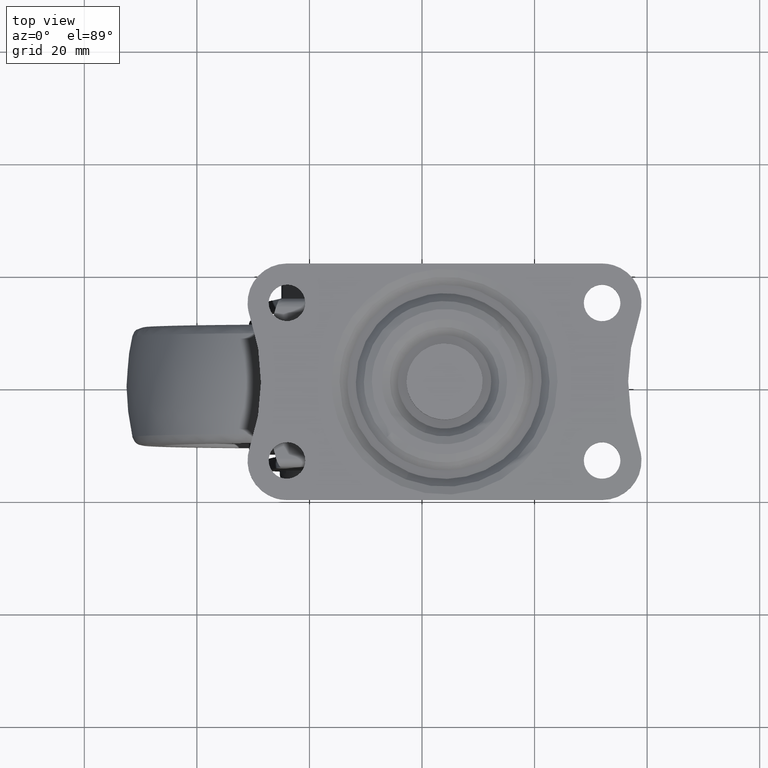
[diagram: clean part render]
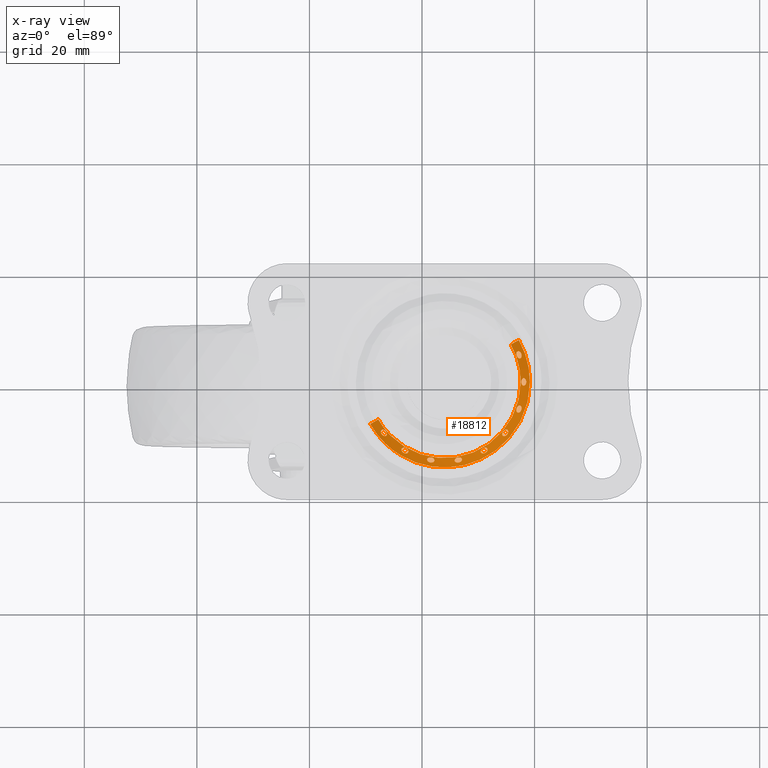
[diagram: x-ray — body ghosted, one internal face saturated and labeled with its STEP entity id]
A machine part, top view, then the same camera in x-ray: the body is ghosted and one INTERNAL B-rep face — a face not visible from any outside direction — is saturated and labeled: STEP entity #18812.
In plain terms, the highlighted face is a freeform B-spline surface patch.
Its self-contained STEP definition (entity closure, byte-faithful):
#16315=CARTESIAN_POINT('',(10.793394546022990,-7.471937858153428,44.785788936382119));
#16316=VERTEX_POINT('',#16315);
#16332=CARTESIAN_POINT('',(13.474641718429520,-10.929826898901149,44.785788935675242));
#16333=VERTEX_POINT('',#16332);
#16334=CARTESIAN_POINT('',(13.474641718429520,-10.929826898901151,44.785788935675235));
#16335=CARTESIAN_POINT('',(11.882100576024081,-9.396219252414880,44.785788936015337));
#16336=CARTESIAN_POINT('',(10.793394546022990,-7.471937858153429,44.785788936382119));
#16344=(BOUNDED_CURVE()B_SPLINE_CURVE(2,(#16334,#16335,#16336),.UNSPECIFIED.,.F.,.U.)B_SPLINE_CURVE_WITH_KNOTS((3,3),(0.872155737437450,0.916070005745847),.UNSPECIFIED.)CURVE()GEOMETRIC_REPRESENTATION_ITEM()RATIONAL_B_SPLINE_CURVE((0.853629213191967,0.852458542809185,0.869362551595296))REPRESENTATION_ITEM(''));
#16345=EDGE_CURVE('',#16333,#16316,#16344,.T.);
#16418=CARTESIAN_POINT('',(39.173802520664793,1.421085E-014,44.785788937627103));
#16419=VERTEX_POINT('',#16418);
#16420=CARTESIAN_POINT('',(39.173802520664793,1.421085E-014,44.785788937627103));
#16421=CARTESIAN_POINT('',(39.173802520376881,-15.173802520963754,44.785788937212033));
#16422=CARTESIAN_POINT('',(23.999999999035140,-15.173802521666740,44.785788936236109));
#16423=CARTESIAN_POINT('',(17.881704897156812,-15.173802521950185,44.785788935842596));
#16424=CARTESIAN_POINT('',(13.474641718429520,-10.929826898901151,44.785788935675235));
#16432=(BOUNDED_CURVE()B_SPLINE_CURVE(2,(#16420,#16421,#16422,#16423,#16424),.UNSPECIFIED.,.F.,.U.)B_SPLINE_CURVE_WITH_KNOTS((3,2,3),(0.500000000000000,0.750000000000000,0.872155737437450),.UNSPECIFIED.)CURVE()GEOMETRIC_REPRESENTATION_ITEM()RATIONAL_B_SPLINE_CURVE((1.0,0.707106781186548,1.0,0.856885651461657,0.853629213191967))REPRESENTATION_ITEM(''));
#16433=EDGE_CURVE('',#16419,#16333,#16432,.T.);
#16435=CARTESIAN_POINT('',(37.206605453977019,7.471937858153451,44.785788936382119));
#16436=VERTEX_POINT('',#16435);
#16437=CARTESIAN_POINT('',(37.206605453977026,7.471937858153451,44.785788936382126));
#16438=CARTESIAN_POINT('',(39.173802521090209,3.994928811796735,44.785788937028705));
#16439=CARTESIAN_POINT('',(39.173802520664793,1.421085E-014,44.785788937627103));
#16447=(BOUNDED_CURVE()B_SPLINE_CURVE(2,(#16437,#16438,#16439),.UNSPECIFIED.,.F.,.U.)B_SPLINE_CURVE_WITH_KNOTS((3,3),(0.416070005745847,0.500000000000000),.UNSPECIFIED.)CURVE()GEOMETRIC_REPRESENTATION_ITEM()RATIONAL_B_SPLINE_CURVE((0.869362551595296,0.901669895311626,1.0))REPRESENTATION_ITEM(''));
#16448=EDGE_CURVE('',#16436,#16419,#16447,.T.);
#17021=CARTESIAN_POINT('',(35.776422122977138,6.662779061757142,46.429005999992803));
#17022=VERTEX_POINT('',#17021);
#17023=CARTESIAN_POINT('',(35.776422122977138,6.662779061757142,46.429005999992803));
#17024=CARTESIAN_POINT('',(37.206605453977019,7.471937858153451,44.785788936382119));
#17025=QUASI_UNIFORM_CURVE('',1,(#17023,#17024),.UNSPECIFIED.,.F.,.U.);
#17026=EDGE_CURVE('',#17022,#16436,#17025,.T.);
#17052=CARTESIAN_POINT('',(12.223577877022860,-6.662779061757113,46.429005999992803));
#17053=VERTEX_POINT('',#17052);
#17067=CARTESIAN_POINT('',(12.223577877022860,-6.662779061757113,46.429005999992803));
#17068=CARTESIAN_POINT('',(10.793394546022990,-7.471937858153428,44.785788936382119));
#17069=QUASI_UNIFORM_CURVE('',1,(#17067,#17068),.UNSPECIFIED.,.F.,.U.);
#17070=EDGE_CURVE('',#17053,#16316,#17069,.T.);
#17912=CARTESIAN_POINT('',(35.740667539735853,6.642550091735368,46.470086426608127));
#17913=CARTESIAN_POINT('',(42.383217631471197,-5.098117448000476,46.470086426608134));
#17914=CARTESIAN_POINT('',(30.642550091735352,-11.740667539735830,46.470086426608127));
#17915=CARTESIAN_POINT('',(18.901882551999510,-18.383217631471187,46.470086426608134));
#17916=CARTESIAN_POINT('',(12.259332460264160,-6.642550091735339,46.470086426608127));
#17917=CARTESIAN_POINT('',(37.243253902498843,7.492672552662851,44.743681498401912));
#17918=CARTESIAN_POINT('',(44.735926455161682,-5.750581349835992,44.743681498401905));
#17919=CARTESIAN_POINT('',(31.492672552662839,-13.243253902498830,44.743681498401912));
#17920=CARTESIAN_POINT('',(18.249418650163992,-20.735926455161675,44.743681498401905));
#17921=CARTESIAN_POINT('',(10.756746097501161,-7.492672552662823,44.743681498401912));
#17929=(BOUNDED_SURFACE()B_SPLINE_SURFACE(2,1,((#17912,#17917),(#17913,#17918),(#17914,#17919),(#17915,#17920),(#17916,#17921)),.UNSPECIFIED.,.F.,.F.,.U.)B_SPLINE_SURFACE_WITH_KNOTS((3,2,3),(2,2),(0.0,25.210545076937091,50.421090153874182),(0.0,2.441505263616992),.UNSPECIFIED.)GEOMETRIC_REPRESENTATION_ITEM()RATIONAL_B_SPLINE_SURFACE(((1.0,1.0),(0.707106781186548,0.707106781186548),(1.0,1.0),(0.707106781186548,0.707106781186548),(1.0,1.0)))REPRESENTATION_ITEM('')SURFACE());
#17930=ORIENTED_EDGE('',*,*,#16345,.T.);
#17931=ORIENTED_EDGE('',*,*,#17070,.F.);
#17932=CARTESIAN_POINT('',(37.530585458291903,1.421085E-014,46.429006000000001));
#17933=VERTEX_POINT('',#17932);
#17934=CARTESIAN_POINT('',(37.530585458291903,1.421085E-014,46.429006000000001));
#17935=CARTESIAN_POINT('',(37.530705606012063,-0.925557858256878,46.429005999999767));
#17936=CARTESIAN_POINT('',(37.368502048245382,-2.498932650115872,46.429006000000292));
#17937=CARTESIAN_POINT('',(36.784717383262567,-4.551799093420319,46.429005999999013));
#17938=CARTESIAN_POINT('',(36.026237317536797,-6.294904788856783,46.429005999999703));
#17939=CARTESIAN_POINT('',(35.033286655043668,-7.918312933851919,46.429005999998793));
#17940=CARTESIAN_POINT('',(33.542897261346269,-9.696137653895141,46.429005999998267));
#17941=CARTESIAN_POINT('',(31.788983878597371,-11.154101303779729,46.429005999997592));
#17942=CARTESIAN_POINT('',(29.728339471314101,-12.317319900237720,46.429005999997280));
#17943=CARTESIAN_POINT('',(27.903172924728800,-13.004388043695140,46.429005999996072));
#17944=CARTESIAN_POINT('',(26.001238505249731,-13.422489342609470,46.429005999996093));
#17945=CARTESIAN_POINT('',(24.382955908832539,-13.557104606549499,46.429005999995603));
#17946=CARTESIAN_POINT('',(22.669930421624759,-13.497130713073661,46.429005999994530));
#17947=CARTESIAN_POINT('',(20.881601309615750,-13.221428959656899,46.429005999996107));
#17948=CARTESIAN_POINT('',(18.712633964575179,-12.534114630264460,46.429005999993720));
#17949=CARTESIAN_POINT('',(16.616347596387470,-11.425509314019680,46.429005999993429));
#17950=CARTESIAN_POINT('',(14.790859612304470,-9.990973085259467,46.429005999993997));
#17951=CARTESIAN_POINT('',(13.342226257589330,-8.422544037169406,46.429005999991503));
#17952=CARTESIAN_POINT('',(12.565362738889959,-7.266965118457904,46.429005999994693));
#17953=CARTESIAN_POINT('',(12.223577877022860,-6.662779061757113,46.429005999992803));
#17954=B_SPLINE_CURVE_WITH_KNOTS('',3,(#17934,#17935,#17936,#17937,#17938,#17939,#17940,#17941,#17942,#17943,#17944,#17945,#17946,#17947,#17948,#17949,#17950,#17951,#17952,#17953),.UNSPECIFIED.,.F.,.U.,(4,1,1,1,1,1,1,1,1,1,1,1,1,1,1,1,1,4),(0.000000060711812,2.776659094200291,4.720306872509344,6.386295084746738,8.468808938861486,10.412480045239180,13.327995786454011,15.271667393976941,17.492990706127038,19.158993775638312,21.102659604039829,22.352090852400341,24.295750854343400,26.517080080844099,29.154915482642838,31.376241026928760,33.458737247976792,35.541222429819072),.UNSPECIFIED.);
#17955=EDGE_CURVE('',#17933,#17053,#17954,.T.);
#17956=ORIENTED_EDGE('',*,*,#17955,.F.);
#17957=CARTESIAN_POINT('',(35.776422122977138,6.662779061757142,46.429005999992796));
#17958=CARTESIAN_POINT('',(37.530585458295029,3.562305863122579,46.429005999996399));
#17959=CARTESIAN_POINT('',(37.530585458291903,1.421085E-014,46.429006000000001));
#17967=(BOUNDED_CURVE()B_SPLINE_CURVE(2,(#17957,#17958,#17959),.UNSPECIFIED.,.F.,.U.)B_SPLINE_CURVE_WITH_KNOTS((3,3),(0.416070005741185,0.500000000000000),.UNSPECIFIED.)CURVE()GEOMETRIC_REPRESENTATION_ITEM()RATIONAL_B_SPLINE_CURVE((0.869362551591707,0.901669895306164,1.0))REPRESENTATION_ITEM(''));
#17968=EDGE_CURVE('',#17022,#17933,#17967,.T.);
#17969=ORIENTED_EDGE('',*,*,#17968,.F.);
#17970=ORIENTED_EDGE('',*,*,#17026,.T.);
#17971=ORIENTED_EDGE('',*,*,#16448,.T.);
#17972=ORIENTED_EDGE('',*,*,#16433,.T.);
#17973=EDGE_LOOP('',(#17930,#17931,#17956,#17969,#17970,#17971,#17972));
#17974=FACE_OUTER_BOUND('',#17973,.T.);
#17975=CARTESIAN_POINT('',(36.819956937593012,-4.666082729858307,46.316878242074409));
#17976=VERTEX_POINT('',#17975);
#17977=CARTESIAN_POINT('',(37.646443202574517,-4.967281104814904,45.437219281015039));
#17978=VERTEX_POINT('',#17977);
#17979=CARTESIAN_POINT('',(36.819956937593012,-4.666082729858307,46.316878242074409));
#17980=CARTESIAN_POINT('',(36.805554963569392,-4.705651828283749,46.316878242074402));
#17981=CARTESIAN_POINT('',(36.793817605342781,-4.745517195118469,46.314078039877948));
#17982=CARTESIAN_POINT('',(36.780081200629262,-4.805747519774329,46.305827572844827));
#17983=CARTESIAN_POINT('',(36.776152017273013,-4.825896901229696,46.302397800163369));
#17984=CARTESIAN_POINT('',(36.769628228437448,-4.866345664665584,46.294148817587782));
#17985=CARTESIAN_POINT('',(36.767027493485912,-4.886746829143806,46.289298589115170));
#17986=CARTESIAN_POINT('',(36.761421134487691,-4.947117420285042,46.272870657026132));
#17987=CARTESIAN_POINT('',(36.760534553770853,-4.986420055459377,46.259430711349822));
#17988=CARTESIAN_POINT('',(36.764527739284247,-5.063147731740783,46.227606503997251));
#17989=CARTESIAN_POINT('',(36.769523529011657,-5.100958000039576,46.208969325120847));
#17990=CARTESIAN_POINT('',(36.785305389331157,-5.171775166663497,46.167912893081613));
#17991=CARTESIAN_POINT('',(36.796028043222172,-5.204979933221893,46.145482770015391));
#17992=CARTESIAN_POINT('',(36.823366002767450,-5.266868493281630,46.096760995871868));
#17993=CARTESIAN_POINT('',(36.840135752070303,-5.295587633375250,46.070311957574781));
#17994=CARTESIAN_POINT('',(36.878296440267789,-5.345562932797572,46.015943700025652));
#17995=CARTESIAN_POINT('',(36.899821516107892,-5.367225760530287,45.987746510279443));
#17996=CARTESIAN_POINT('',(36.948043463416937,-5.403571557458123,45.929254368739642));
#17997=CARTESIAN_POINT('',(36.974175814423248,-5.417761862640498,45.899670411747522));
#17998=CARTESIAN_POINT('',(37.015616979302813,-5.432864045302598,45.855609870475568));
#17999=CARTESIAN_POINT('',(37.029842870360717,-5.436887006060927,45.840932270375987));
#18000=CARTESIAN_POINT('',(37.059135131417889,-5.442867821409733,45.811594701735601));
#18001=CARTESIAN_POINT('',(37.074249865267483,-5.444815782245652,45.796893865712597));
#18002=CARTESIAN_POINT('',(37.119803214601447,-5.447410134718980,45.753838673136322));
#18003=CARTESIAN_POINT('',(37.150769934760852,-5.444933179309413,45.726189955284482));
#18004=CARTESIAN_POINT('',(37.198073951126922,-5.435022759348317,45.686240548310550));
#18005=CARTESIAN_POINT('',(37.214073955619121,-5.430643998560138,45.673110974006903));
#18006=CARTESIAN_POINT('',(37.245768527021269,-5.419950316961063,45.647843654688707));
#18007=CARTESIAN_POINT('',(37.261489525162077,-5.413642793224857,45.635678781250888));
#18008=CARTESIAN_POINT('',(37.308278006387283,-5.391935437078275,45.600531673737208));
#18009=CARTESIAN_POINT('',(37.339101197063023,-5.373684150993670,45.578801653236980));
#18010=CARTESIAN_POINT('',(37.399150080831717,-5.330052823741792,45.539269017043480));
#18011=CARTESIAN_POINT('',(37.427695502529780,-5.305203402617062,45.521900715637670));
#18012=CARTESIAN_POINT('',(37.481942950202537,-5.249749694473990,45.491648207923802));
#18013=CARTESIAN_POINT('',(37.507865841092588,-5.218790288576808,45.478683960491722));
#18014=CARTESIAN_POINT('',(37.555093462260729,-5.153119655861296,45.458085630930633));
#18015=CARTESIAN_POINT('',(37.576535659957180,-5.118361589978119,45.450344157799222));
#18016=CARTESIAN_POINT('',(37.615105249652053,-5.045037706845198,45.439887337422363));
#18017=CARTESIAN_POINT('',(37.632204042262472,-5.006356309195224,45.437234179962871));
#18018=CARTESIAN_POINT('',(37.646443202574638,-4.967281104814569,45.437219281015039));
#18019=B_SPLINE_CURVE_WITH_KNOTS('',3,(#17979,#17980,#17981,#17982,#17983,#17984,#17985,#17986,#17987,#17988,#17989,#17990,#17991,#17992,#17993,#17994,#17995,#17996,#17997,#17998,#17999,#18000,#18001,#18002,#18003,#18004,#18005,#18006,#18007,#18008,#18009,#18010,#18011,#18012,#18013,#18014,#18015,#18016,#18017,#18018),.UNSPECIFIED.,.F.,.U.,(4,2,2,2,2,2,2,2,2,2,2,2,2,2,2,2,2,2,2,4),(0.0,0.031250000000009,0.046875000000014,0.062500000000019,0.093750000000027,0.125000000000036,0.156250000000045,0.187500000000053,0.218750000000062,0.250000000000071,0.265625000000072,0.281250000000072,0.312500000000078,0.328125000000080,0.343750000000083,0.375000000000084,0.406250000000085,0.437500000000086,0.468750000000088,0.500000000000089),.UNSPECIFIED.);
#18020=EDGE_CURVE('',#17976,#17978,#18019,.T.);
#18021=ORIENTED_EDGE('',*,*,#18020,.T.);
#18022=CARTESIAN_POINT('',(37.646443202574517,-4.967281104814904,45.437219281015039));
#18023=CARTESIAN_POINT('',(37.660682362886810,-4.928205900433914,45.437204382067208));
#18024=CARTESIAN_POINT('',(37.672278929335242,-4.888369775260707,45.439754390698837));
#18025=CARTESIAN_POINT('',(37.685607983370573,-4.827445341178897,45.447538916744861));
#18026=CARTESIAN_POINT('',(37.689364296429837,-4.806912233503367,45.450811570172142));
#18027=CARTESIAN_POINT('',(37.695345296992173,-4.766301225139186,45.458567220206326));
#18028=CARTESIAN_POINT('',(37.697596316394332,-4.746117523649329,45.463060920548664));
#18029=CARTESIAN_POINT('',(37.702160360684672,-4.685929721286144,45.478375319829183));
#18030=CARTESIAN_POINT('',(37.702305813733197,-4.646285063946888,45.491010245345088));
#18031=CARTESIAN_POINT('',(37.696470000236950,-4.568032564990832,45.521485460990078));
#18032=CARTESIAN_POINT('',(37.690560286907250,-4.530569377142032,45.538893307434378));
#18033=CARTESIAN_POINT('',(37.677373620730620,-4.477197854389670,45.568079772047369));
#18034=CARTESIAN_POINT('',(37.672251098557908,-4.459860357331091,45.578332748257338));
#18035=CARTESIAN_POINT('',(37.660511829551737,-4.426122737583222,45.599927691005831));
#18036=CARTESIAN_POINT('',(37.653848577154349,-4.409629551311793,45.611342370475619));
#18037=CARTESIAN_POINT('',(37.631883558750609,-4.362460150933202,45.646707036162113));
#18038=CARTESIAN_POINT('',(37.614690293385571,-4.334078595399435,45.671705020357422));
#18039=CARTESIAN_POINT('',(37.575254836416207,-4.283455960056836,45.724592032833783));
#18040=CARTESIAN_POINT('',(37.552698223332982,-4.261039838991227,45.752832971786439));
#18041=CARTESIAN_POINT('',(37.504202087449457,-4.224563188242518,45.810022376449893));
#18042=CARTESIAN_POINT('',(37.478198164358609,-4.210264405969764,45.839104575492136));
#18043=CARTESIAN_POINT('',(37.436513926362373,-4.194855394031721,45.883486965552287));
#18044=CARTESIAN_POINT('',(37.422109806187940,-4.190732880743953,45.898465202646321));
#18045=CARTESIAN_POINT('',(37.393063973664141,-4.184732919763191,45.927978932908353));
#18046=CARTESIAN_POINT('',(37.363636865815593,-4.180906837323114,45.957208267470541));
#18047=CARTESIAN_POINT('',(37.333460599673309,-4.181331851672378,45.985877780345113));
#18048=CARTESIAN_POINT('',(37.302903667936192,-4.183898222614473,46.014261893452890));
#18049=CARTESIAN_POINT('',(37.287343210598252,-4.186276374019513,46.028391340783358));
#18050=CARTESIAN_POINT('',(37.240894630777341,-4.196536195683929,46.069596655640382));
#18051=CARTESIAN_POINT('',(37.210227348879087,-4.207448994572260,46.095530473584333));
#18052=CARTESIAN_POINT('',(37.149418732749382,-4.237071099373504,46.144402793383392));
#18053=CARTESIAN_POINT('',(37.119131415371662,-4.255980554139384,46.167416551099322));
#18054=CARTESIAN_POINT('',(37.061523033273041,-4.299956757418212,46.208514367242742));
#18055=CARTESIAN_POINT('',(37.033879911067203,-4.325138163440325,46.226871441083937));
#18056=CARTESIAN_POINT('',(36.980855343690230,-4.381855677900051,46.259152850794287));
#18057=CARTESIAN_POINT('',(36.956058754051760,-4.412803297917209,46.272707242471348));
#18058=CARTESIAN_POINT('',(36.910311704240343,-4.478763242819301,46.294527366286978));
#18059=CARTESIAN_POINT('',(36.889118571487302,-4.514158232121009,46.302897083665727));
#18060=CARTESIAN_POINT('',(36.851080665063101,-4.588195263575376,46.314075374826388));
#18061=CARTESIAN_POINT('',(36.834358911616597,-4.626513631432891,46.316878242074417));
#18062=CARTESIAN_POINT('',(36.819956937593012,-4.666082729858307,46.316878242074409));
#18063=B_SPLINE_CURVE_WITH_KNOTS('',3,(#18022,#18023,#18024,#18025,#18026,#18027,#18028,#18029,#18030,#18031,#18032,#18033,#18034,#18035,#18036,#18037,#18038,#18039,#18040,#18041,#18042,#18043,#18044,#18045,#18046,#18047,#18048,#18049,#18050,#18051,#18052,#18053,#18054,#18055,#18056,#18057,#18058,#18059,#18060,#18061,#18062),.UNSPECIFIED.,.F.,.U.,(4,2,2,2,2,2,2,2,2,2,2,2,1,2,2,2,2,2,2,2,4),(0.500000000000089,0.531250000000090,0.546875000000090,0.562500000000090,0.593750000000091,0.625000000000092,0.640625000000091,0.656250000000090,0.687500000000086,0.718750000000083,0.750000000000079,0.765625000000075,0.781250000000072,0.796875000000068,0.812500000000064,0.843750000000053,0.875000000000043,0.906250000000032,0.937500000000021,0.968750000000011,1.0),.UNSPECIFIED.);
#18064=EDGE_CURVE('',#17978,#17976,#18063,.T.);
#18065=ORIENTED_EDGE('',*,*,#18064,.T.);
#18066=EDGE_LOOP('',(#18021,#18065));
#18067=FACE_BOUND('',#18066,.T.);
#18068=CARTESIAN_POINT('',(34.450924648734862,-8.769367018214913,46.316878241570997));
#18069=VERTEX_POINT('',#18068);
#18070=CARTESIAN_POINT('',(35.124551782017193,-9.335075859604070,45.437219281014997));
#18071=VERTEX_POINT('',#18070);
#18072=CARTESIAN_POINT('',(34.450924648734862,-8.769367018214913,46.316878241570997));
#18073=CARTESIAN_POINT('',(34.423857791310269,-8.801624042790897,46.316878241570997));
#18074=CARTESIAN_POINT('',(34.399193524188917,-8.835070821132687,46.314078039877202));
#18075=CARTESIAN_POINT('',(34.365685541775143,-8.886970685646174,46.305827572844592));
#18076=CARTESIAN_POINT('',(34.355101822836907,-8.904561050857465,46.302397800163362));
#18077=CARTESIAN_POINT('',(34.335137174741568,-8.940339188184211,46.294148817588052));
#18078=CARTESIAN_POINT('',(34.325715674100117,-8.958620508158855,46.289298589115553));
#18079=CARTESIAN_POINT('',(34.299799461685282,-9.013432819458316,46.272870657026687));
#18080=CARTESIAN_POINT('',(34.285524055412537,-9.050061987244984,46.259430711350561));
#18081=CARTESIAN_POINT('',(34.263034011534039,-9.123528168337757,46.227606503998402));
#18082=CARTESIAN_POINT('',(34.254796644893062,-9.160766859166390,46.208969325122261));
#18083=CARTESIAN_POINT('',(34.245405845098581,-9.232710942195977,46.167912893083468));
#18084=CARTESIAN_POINT('',(34.244125144817637,-9.267580579926289,46.145482770017523));
#18085=CARTESIAN_POINT('',(34.248647289487323,-9.335086935967041,46.096760995874597));
#18086=CARTESIAN_POINT('',(34.254583174748340,-9.367809692048409,46.070311957577772));
#18087=CARTESIAN_POINT('',(34.273349932779787,-9.427822836183839,46.015943700029140));
#18088=CARTESIAN_POINT('',(34.286167764262231,-9.455541245073551,45.987746510283202));
#18089=CARTESIAN_POINT('',(34.319050577632957,-9.506187999573349,45.929254368744061));
#18090=CARTESIAN_POINT('',(34.338753584824737,-9.528460315076854,45.899670411751977));
#18091=CARTESIAN_POINT('',(34.372530290979519,-9.556825437834208,45.855609870480322));
#18092=CARTESIAN_POINT('',(34.384522322215368,-9.565471325671213,45.840932270380847));
#18093=CARTESIAN_POINT('',(34.410002484453571,-9.581109997046120,45.811594701740667));
#18094=CARTESIAN_POINT('',(34.423539446472653,-9.588110024906959,45.796893865717720));
#18095=CARTESIAN_POINT('',(34.465458271888522,-9.606128081850615,45.753838673141523));
#18096=CARTESIAN_POINT('',(34.495404638955982,-9.614391747197868,45.726189955289733));
#18097=CARTESIAN_POINT('',(34.543245437323478,-9.621257925149633,45.686240548315887));
#18098=CARTESIAN_POINT('',(34.559778147869459,-9.622615559778685,45.673110974012253));
#18099=CARTESIAN_POINT('',(34.593218757247897,-9.623406967945135,45.647843654693922));
#18100=CARTESIAN_POINT('',(34.610148963364352,-9.622856732472394,45.635678781256047));
#18101=CARTESIAN_POINT('',(34.661540106969419,-9.618461093140143,45.600531673742218));
#18102=CARTESIAN_POINT('',(34.696746739278467,-9.611852646379923,45.578801653241989));
#18103=CARTESIAN_POINT('',(34.768097025042259,-9.591390537960555,45.539269017047907));
#18104=CARTESIAN_POINT('',(34.803419949743592,-9.577802829519914,45.521900715641827));
#18105=CARTESIAN_POINT('',(34.873362161224840,-9.544247109012098,45.491648207927398));
#18106=CARTESIAN_POINT('',(34.908310450945713,-9.524020934604952,45.478683960494983));
#18107=CARTESIAN_POINT('',(34.975150577268458,-9.478463523401924,45.458085630933041));
#18108=CARTESIAN_POINT('',(35.007187610892373,-9.453135288908710,45.450344157801190));
#18109=CARTESIAN_POINT('',(35.068509414733832,-9.397424953598232,45.439887337423421));
#18110=CARTESIAN_POINT('',(35.097806841142770,-9.366924461164725,45.437234179963390));
#18111=CARTESIAN_POINT('',(35.124551782017363,-9.335075859603872,45.437219281014997));
#18112=B_SPLINE_CURVE_WITH_KNOTS('',3,(#18072,#18073,#18074,#18075,#18076,#18077,#18078,#18079,#18080,#18081,#18082,#18083,#18084,#18085,#18086,#18087,#18088,#18089,#18090,#18091,#18092,#18093,#18094,#18095,#18096,#18097,#18098,#18099,#18100,#18101,#18102,#18103,#18104,#18105,#18106,#18107,#18108,#18109,#18110,#18111),.UNSPECIFIED.,.F.,.U.,(4,2,2,2,2,2,2,2,2,2,2,2,2,2,2,2,2,2,2,4),(0.0,0.031250000000008,0.046875000000012,0.062500000000016,0.093750000000025,0.125000000000035,0.156250000000044,0.187500000000054,0.218750000000064,0.250000000000073,0.265625000000076,0.281250000000078,0.312500000000080,0.328125000000078,0.343750000000077,0.375000000000075,0.406250000000072,0.437500000000070,0.468750000000068,0.500000000000065),.UNSPECIFIED.);
#18113=EDGE_CURVE('',#18069,#18071,#18112,.T.);
#18114=ORIENTED_EDGE('',*,*,#18113,.T.);
#18115=CARTESIAN_POINT('',(35.124551782017193,-9.335075859604070,45.437219281014997));
#18116=CARTESIAN_POINT('',(35.151296722891942,-9.303227258043018,45.437204382066632));
#18117=CARTESIAN_POINT('',(35.175818688051578,-9.269759804496417,45.439754390697701));
#18118=CARTESIAN_POINT('',(35.209181285447841,-9.217068368336703,45.447538916742729));
#18119=CARTESIAN_POINT('',(35.219733801541423,-9.199058293303313,45.450811570169677));
#18120=CARTESIAN_POINT('',(35.239243886536649,-9.162942051090708,45.458567220203257));
#18121=CARTESIAN_POINT('',(35.248262385334769,-9.144745469719270,45.463060920545288));
#18122=CARTESIAN_POINT('',(35.273136624866943,-9.089748431060142,45.478375319824814));
#18123=CARTESIAN_POINT('',(35.286832577409193,-9.052544386977761,45.491010245340021));
#18124=CARTESIAN_POINT('',(35.308112637440409,-8.977015125383197,45.521485460983442));
#18125=CARTESIAN_POINT('',(35.315372488311979,-8.939790003210156,45.538893307427287));
#18126=CARTESIAN_POINT('',(35.321235211275607,-8.885127071664030,45.568079772039248));
#18127=CARTESIAN_POINT('',(35.322351388219417,-8.867083147847511,45.578332748248833));
#18128=CARTESIAN_POINT('',(35.322859029303487,-8.831365089059602,45.599927690996601));
#18129=CARTESIAN_POINT('',(35.322238622128147,-8.813587597087141,45.611342370465977));
#18130=CARTESIAN_POINT('',(35.317731141498300,-8.761750380881319,45.646707036151660));
#18131=CARTESIAN_POINT('',(35.311281820600023,-8.729199999495071,45.671705020346408));
#18132=CARTESIAN_POINT('',(35.291538573686147,-8.668142561973363,45.724592032821533));
#18133=CARTESIAN_POINT('',(35.278009055762737,-8.639363482381162,45.752832971773621));
#18134=CARTESIAN_POINT('',(35.244913344055497,-8.588499987494366,45.810022376436422));
#18135=CARTESIAN_POINT('',(35.225368120978942,-8.566169661803079,45.839104575478324));
#18136=CARTESIAN_POINT('',(35.191467942604092,-8.537433077936083,45.883486965537912));
#18137=CARTESIAN_POINT('',(35.179342479753302,-8.528632683373390,45.898465202631890));
#18138=CARTESIAN_POINT('',(35.154100432781547,-8.513060304510798,45.927978932893922));
#18139=CARTESIAN_POINT('',(35.127756593950622,-8.499400299430169,45.957208267456139));
#18140=CARTESIAN_POINT('',(35.099254815866097,-8.489478791405691,45.985877780330682));
#18141=CARTESIAN_POINT('',(35.069662942042392,-8.481439305068637,46.014261893438437));
#18142=CARTESIAN_POINT('',(35.054227519421993,-8.478352046545490,46.028391340768920));
#18143=CARTESIAN_POINT('',(35.007071066042961,-8.472106775324468,46.069596655626512));
#18144=CARTESIAN_POINT('',(34.974520850504327,-8.471872623760387,46.095530473570797));
#18145=CARTESIAN_POINT('',(34.907248086118578,-8.478910525447361,46.144402793370588));
#18146=CARTESIAN_POINT('',(34.872319903046417,-8.486320727922058,46.167416551087157));
#18147=CARTESIAN_POINT('',(34.803144984145028,-8.507941614528546,46.208514367231942));
#18148=CARTESIAN_POINT('',(34.768556398096131,-8.522149891328368,46.226871441073847));
#18149=CARTESIAN_POINT('',(34.699331070987597,-8.557311450998533,46.259152850785668));
#18150=CARTESIAN_POINT('',(34.665445189249233,-8.577911768016419,46.272707242463873));
#18151=CARTESIAN_POINT('',(34.599897394309238,-8.624247428972701,46.294527366281422));
#18152=CARTESIAN_POINT('',(34.567876564535901,-8.650259360929130,46.302897083661144));
#18153=CARTESIAN_POINT('',(34.506810468448393,-8.706821682842730,46.314075374824071));
#18154=CARTESIAN_POINT('',(34.477991506159427,-8.737109993638942,46.316878241570997));
#18155=CARTESIAN_POINT('',(34.450924648734862,-8.769367018214913,46.316878241570997));
#18156=B_SPLINE_CURVE_WITH_KNOTS('',3,(#18115,#18116,#18117,#18118,#18119,#18120,#18121,#18122,#18123,#18124,#18125,#18126,#18127,#18128,#18129,#18130,#18131,#18132,#18133,#18134,#18135,#18136,#18137,#18138,#18139,#18140,#18141,#18142,#18143,#18144,#18145,#18146,#18147,#18148,#18149,#18150,#18151,#18152,#18153,#18154,#18155),.UNSPECIFIED.,.F.,.U.,(4,2,2,2,2,2,2,2,2,2,2,2,1,2,2,2,2,2,2,2,4),(0.500000000000065,0.531250000000063,0.546875000000063,0.562500000000063,0.593750000000062,0.625000000000062,0.640625000000060,0.656250000000057,0.687500000000057,0.718750000000056,0.750000000000056,0.765625000000052,0.781250000000049,0.796875000000045,0.812500000000041,0.843750000000035,0.875000000000028,0.906250000000021,0.937500000000014,0.968750000000007,1.0),.UNSPECIFIED.);
#18157=EDGE_CURVE('',#18071,#18069,#18156,.T.);
#18158=ORIENTED_EDGE('',*,*,#18157,.T.);
#18159=EDGE_LOOP('',(#18114,#18158));
#18160=FACE_BOUND('',#18159,.T.);
#18161=CARTESIAN_POINT('',(30.821356608542409,-11.814936222541141,46.316878242074409));
#18162=VERTEX_POINT('',#18161);
#18163=CARTESIAN_POINT('',(31.260875235666191,-12.576922694659270,45.437219281014940));
#18164=VERTEX_POINT('',#18163);
#18165=CARTESIAN_POINT('',(30.821356608542409,-11.814936222541141,46.316878242074409));
#18166=CARTESIAN_POINT('',(30.784889530177342,-11.835990500051770,46.316878242074402));
#18167=CARTESIAN_POINT('',(30.750273228273969,-11.858984514349880,46.314078039877991));
#18168=CARTESIAN_POINT('',(30.701035225358570,-11.896294029108279,46.305827572844869));
#18169=CARTESIAN_POINT('',(30.685073523540140,-11.909203720426870,46.302397800163412));
#18170=CARTESIAN_POINT('',(30.654076047390859,-11.935995860256259,46.294148817587782));
#18171=CARTESIAN_POINT('',(30.638970153083410,-11.949952338735031,46.289298589115191));
#18172=CARTESIAN_POINT('',(30.595869964951660,-11.992595196507081,46.272870657026147));
#18173=CARTESIAN_POINT('',(30.569927557802060,-12.022132878682539,46.259430711349829));
#18174=CARTESIAN_POINT('',(30.523666915741220,-12.083476458902560,46.227606503997237));
#18175=CARTESIAN_POINT('',(30.503189940719501,-12.115652036563080,46.208969325120840));
#18176=CARTESIAN_POINT('',(30.469759149860369,-12.180045517803940,46.167912893081592));
#18177=CARTESIAN_POINT('',(30.456629566762810,-12.212374233775170,46.145482770015363));
#18178=CARTESIAN_POINT('',(30.437790459170952,-12.277356122971391,46.096760995871847));
#18179=CARTESIAN_POINT('',(30.432176525023870,-12.310135647720699,46.070311957574738));
#18180=CARTESIAN_POINT('',(30.429285804904119,-12.372948165686839,46.015943700025602));
#18181=CARTESIAN_POINT('',(30.431850372381771,-12.403378906541301,45.987746510279372));
#18182=CARTESIAN_POINT('',(30.445427899224871,-12.462217872553831,45.929254368739556));
#18183=CARTESIAN_POINT('',(30.456325089149981,-12.489885828423770,45.899670411747472));
#18184=CARTESIAN_POINT('',(30.478363367327930,-12.528092638846610,45.855609870475483));
#18185=CARTESIAN_POINT('',(30.486675122791588,-12.540318632089210,45.840932270375923));
#18186=CARTESIAN_POINT('',(30.505269902598769,-12.563728904919710,45.811594701735508));
#18187=CARTESIAN_POINT('',(30.515596335384011,-12.574936693135720,45.796893865712512));
#18188=CARTESIAN_POINT('',(30.548824607881748,-12.606205210963010,45.753838673136237));
#18189=CARTESIAN_POINT('',(30.574138648028480,-12.624212777066729,45.726189955284397));
#18190=CARTESIAN_POINT('',(30.616745922060709,-12.647027390535079,45.686240548310472));
#18191=CARTESIAN_POINT('',(30.631817249772279,-12.653957669808070,45.673110974006804));
#18192=CARTESIAN_POINT('',(30.662970466105751,-12.666138712234231,45.647843654688593));
#18193=CARTESIAN_POINT('',(30.679067847477238,-12.671412131543081,45.635678781250782));
#18194=CARTESIAN_POINT('',(30.728863123091859,-12.684858387999800,45.600531673737137));
#18195=CARTESIAN_POINT('',(30.764206757584279,-12.690689856772289,45.578801653236887));
#18196=CARTESIAN_POINT('',(30.838252547862471,-12.695864999447100,45.539269017043367));
#18197=CARTESIAN_POINT('',(30.876092509537610,-12.695177881860561,45.521900715637557));
#18198=CARTESIAN_POINT('',(30.953293421886290,-12.687567464108390,45.491648207923703));
#18199=CARTESIAN_POINT('',(30.993051830916151,-12.680514096329951,45.478683960491622));
#18200=CARTESIAN_POINT('',(31.071442556703531,-12.660564802783959,45.458085630930512));
#18201=CARTESIAN_POINT('',(31.110210287183531,-12.647721358564320,45.450344157799087));
#18202=CARTESIAN_POINT('',(31.186887990614629,-12.616344059709000,45.439887337422249));
#18203=CARTESIAN_POINT('',(31.224850348812680,-12.597703282017729,45.437234179962779));
#18204=CARTESIAN_POINT('',(31.260875235666351,-12.576922694659190,45.437219281014940));
#18205=B_SPLINE_CURVE_WITH_KNOTS('',3,(#18165,#18166,#18167,#18168,#18169,#18170,#18171,#18172,#18173,#18174,#18175,#18176,#18177,#18178,#18179,#18180,#18181,#18182,#18183,#18184,#18185,#18186,#18187,#18188,#18189,#18190,#18191,#18192,#18193,#18194,#18195,#18196,#18197,#18198,#18199,#18200,#18201,#18202,#18203,#18204),.UNSPECIFIED.,.F.,.U.,(4,2,2,2,2,2,2,2,2,2,2,2,2,2,2,2,2,2,2,4),(0.0,0.031250000000007,0.046875000000011,0.062500000000014,0.093750000000019,0.125000000000024,0.156250000000030,0.187500000000035,0.218750000000040,0.250000000000045,0.265625000000048,0.281250000000051,0.312500000000054,0.328125000000053,0.343750000000052,0.375000000000051,0.406250000000049,0.437500000000048,0.468750000000046,0.500000000000044),.UNSPECIFIED.);
#18206=EDGE_CURVE('',#18162,#18164,#18205,.T.);
#18207=ORIENTED_EDGE('',*,*,#18206,.T.);
#18208=CARTESIAN_POINT('',(31.260875235666191,-12.576922694659270,45.437219281014940));
#18209=CARTESIAN_POINT('',(31.296900122520022,-12.556142107300641,45.437204382067101));
#18210=CARTESIAN_POINT('',(31.331389775486361,-12.533079994204281,45.439754390698774));
#18211=CARTESIAN_POINT('',(31.380761894617091,-12.494976920808471,45.447538916744769));
#18212=CARTESIAN_POINT('',(31.396837824564980,-12.481662159266261,45.450811570172043));
#18213=CARTESIAN_POINT('',(31.427523789803399,-12.454396835034419,45.458567220206227));
#18214=CARTESIAN_POINT('',(31.442222003943069,-12.440382150047411,45.463060920548578));
#18215=CARTESIAN_POINT('',(31.484406238323150,-12.397209329623440,45.478375319829077));
#18216=CARTESIAN_POINT('',(31.510000756350649,-12.366933255586730,45.491010245345009));
#18217=CARTESIAN_POINT('',(31.555830000606729,-12.303237174993439,45.521485460989993));
#18218=CARTESIAN_POINT('',(31.575383770518680,-12.270740017615180,45.538893307434321));
#18219=CARTESIAN_POINT('',(31.599588751706140,-12.221378833558539,45.568079772047327));
#18220=CARTESIAN_POINT('',(31.606809000353191,-12.204804846496261,45.578332748257253));
#18221=CARTESIAN_POINT('',(31.619502322518979,-12.171414473700400,45.599927691005782));
#18222=CARTESIAN_POINT('',(31.624999590826398,-12.154496903926541,45.611342370475597));
#18223=CARTESIAN_POINT('',(31.638493316654909,-12.104244205204820,45.646707036162077));
#18224=CARTESIAN_POINT('',(31.643565823503678,-12.071451054354410,45.671705020357400));
#18225=CARTESIAN_POINT('',(31.645896113598340,-12.007323242731950,45.724592032833733));
#18226=CARTESIAN_POINT('',(31.643025550368549,-11.975652386346921,45.752832971786432));
#18227=CARTESIAN_POINT('',(31.629322094106350,-11.916536935473680,45.810022376449879));
#18228=CARTESIAN_POINT('',(31.618593013401860,-11.888868433204250,45.839104575492129));
#18229=CARTESIAN_POINT('',(31.596565756470461,-11.850270333531951,45.883486965552279));
#18230=CARTESIAN_POINT('',(31.588181460714939,-11.837853515159569,45.898465202646349));
#18231=CARTESIAN_POINT('',(31.569787762691359,-11.814586977132009,45.927978932908367));
#18232=CARTESIAN_POINT('',(31.549704587761259,-11.792740703642860,45.957208260624697));
#18233=CARTESIAN_POINT('',(31.526315093683021,-11.773669297523551,45.985877780345128));
#18234=CARTESIAN_POINT('',(31.501257494483589,-11.755993634612080,46.014261893452897));
#18235=CARTESIAN_POINT('',(31.487808846350340,-11.747813335102910,46.028391340783422));
#18236=CARTESIAN_POINT('',(31.445632283644262,-11.725816242879910,46.069596655640417));
#18237=CARTESIAN_POINT('',(31.415125170848139,-11.714463383000250,46.095530473584382));
#18238=CARTESIAN_POINT('',(31.349502346429130,-11.698068206766360,46.144402793383414));
#18239=CARTESIAN_POINT('',(31.314146152025462,-11.693085377171119,46.167416551099393));
#18240=CARTESIAN_POINT('',(31.241748212453061,-11.689743149095280,46.208514367242763));
#18241=CARTESIAN_POINT('',(31.204386056511311,-11.691264568801470,46.226871441083993));
#18242=CARTESIAN_POINT('',(31.127309565776471,-11.700629170661960,46.259152850794322));
#18243=CARTESIAN_POINT('',(31.088421529379271,-11.708397482421780,46.272707242471398));
#18244=CARTESIAN_POINT('',(31.010979020763489,-11.729520094883990,46.294527366287006));
#18245=CARTESIAN_POINT('',(30.971992678617589,-11.743011546608709,46.302897083665769));
#18246=CARTESIAN_POINT('',(30.895263865296609,-11.775276908191470,46.314075374826437));
#18247=CARTESIAN_POINT('',(30.857823686907469,-11.793881945030510,46.316878242074409));
#18248=CARTESIAN_POINT('',(30.821356608542409,-11.814936222541141,46.316878242074409));
#18249=B_SPLINE_CURVE_WITH_KNOTS('',3,(#18208,#18209,#18210,#18211,#18212,#18213,#18214,#18215,#18216,#18217,#18218,#18219,#18220,#18221,#18222,#18223,#18224,#18225,#18226,#18227,#18228,#18229,#18230,#18231,#18232,#18233,#18234,#18235,#18236,#18237,#18238,#18239,#18240,#18241,#18242,#18243,#18244,#18245,#18246,#18247,#18248),.UNSPECIFIED.,.F.,.U.,(4,2,2,2,2,2,2,2,2,2,2,2,1,2,2,2,2,2,2,2,4),(0.500000000000044,0.531250000000043,0.546875000000045,0.562500000000046,0.593750000000045,0.625000000000043,0.640625000000041,0.656250000000040,0.687500000000034,0.718750000000028,0.750000000000022,0.765625000000019,0.781250000000017,0.796875000000014,0.812500000000012,0.843750000000010,0.875000000000008,0.906250000000006,0.937500000000004,0.968750000000002,1.0),.UNSPECIFIED.);
#18250=EDGE_CURVE('',#18164,#18162,#18249,.T.);
#18251=ORIENTED_EDGE('',*,*,#18250,.T.);
#18252=EDGE_LOOP('',(#18207,#18251));
#18253=FACE_BOUND('',#18252,.T.);
#18254=CARTESIAN_POINT('',(26.369032288579351,-13.435449748307200,46.316878242074409));
#18255=VERTEX_POINT('',#18254);
#18256=CARTESIAN_POINT('',(26.521429976779569,-14.301807037138380,45.437219281015032));
#18257=VERTEX_POINT('',#18256);
#18258=CARTESIAN_POINT('',(26.369032288579351,-13.435449748307200,46.316878242074409));
#18259=CARTESIAN_POINT('',(26.327563457126281,-13.442761822150841,46.316878242074417));
#18260=CARTESIAN_POINT('',(26.287170357602911,-13.452529655170650,46.314078039877948));
#18261=CARTESIAN_POINT('',(26.228141164015991,-13.470748742060019,46.305827572844827));
#18262=CARTESIAN_POINT('',(26.208726696126980,-13.477420660185050,46.302397800163362));
#18263=CARTESIAN_POINT('',(26.170435145022040,-13.491995275042489,46.294148817587747));
#18264=CARTESIAN_POINT('',(26.151466850841359,-13.499943554745039,46.289298589115177));
#18265=CARTESIAN_POINT('',(26.096381205772449,-13.525273601000469,46.272870657026132));
#18266=CARTESIAN_POINT('',(26.061900834917392,-13.544157117164350,46.259430711349822));
#18267=CARTESIAN_POINT('',(25.997449310841048,-13.585979155401709,46.227606503997272));
#18268=CARTESIAN_POINT('',(25.967202552834092,-13.609210770366991,46.208969325120847));
#18269=CARTESIAN_POINT('',(25.913764017673468,-13.658286845634599,46.167912893081613));
#18270=CARTESIAN_POINT('',(25.890369173252680,-13.684175319579420,46.145482770015377));
#18271=CARTESIAN_POINT('',(25.850441087809951,-13.738794967063139,46.096760995871882));
#18272=CARTESIAN_POINT('',(25.833954457565461,-13.767677566021311,46.070311957574788));
#18273=CARTESIAN_POINT('',(25.809754922802739,-13.825713341137400,46.015943700025659));
#18274=CARTESIAN_POINT('',(25.801756901588440,-13.855186017499660,45.987746510279422));
#18275=CARTESIAN_POINT('',(25.794391491782669,-13.915120347353181,45.929254368739628));
#18276=CARTESIAN_POINT('',(25.795168502510439,-13.944846779776430,45.899670411747529));
#18277=CARTESIAN_POINT('',(25.802810211112231,-13.988286972655599,45.855609870475568));
#18278=CARTESIAN_POINT('',(25.806439170426071,-14.002618436082409,45.840932270375987));
#18279=CARTESIAN_POINT('',(25.815905762927230,-14.030976685966589,45.811594701735586));
#18280=CARTESIAN_POINT('',(25.821776146282549,-14.045040409869740,45.796893865712597));
#18281=CARTESIAN_POINT('',(25.842306045801269,-14.085787943857090,45.753838673136322));
#18282=CARTESIAN_POINT('',(25.859934512189682,-14.111367432482220,45.726189955284482));
#18283=CARTESIAN_POINT('',(25.892169195821211,-14.147378702375731,45.686240548310550));
#18284=CARTESIAN_POINT('',(25.903961316146962,-14.159045732332549,45.673110974006903));
#18285=CARTESIAN_POINT('',(25.929069601772810,-14.181147195529331,45.647843654688693));
#18286=CARTESIAN_POINT('',(25.942392576633772,-14.191608217424021,45.635678781250888));
#18287=CARTESIAN_POINT('',(25.984585939118290,-14.221274552696240,45.600531673737201));
#18288=CARTESIAN_POINT('',(26.015803611857159,-14.238842575804830,45.578801653236980));
#18289=CARTESIAN_POINT('',(26.083613891542480,-14.269030770991490,45.539269017043459));
#18290=CARTESIAN_POINT('',(26.119406832354841,-14.281327120781370,45.521900715637642));
#18291=CARTESIAN_POINT('',(26.194554876177200,-14.300579934484929,45.491648207923781));
#18292=CARTESIAN_POINT('',(26.234327953615232,-14.307550113586640,45.478683960491701));
#18293=CARTESIAN_POINT('',(26.314814200413529,-14.315615116920791,45.458085630930583));
#18294=CARTESIAN_POINT('',(26.355636667303020,-14.316805571897291,45.450344157799186));
#18295=CARTESIAN_POINT('',(26.438421807647700,-14.313545874820150,45.439887337422363));
#18296=CARTESIAN_POINT('',(26.480470276971669,-14.309013164769841,45.437234179962871));
#18297=CARTESIAN_POINT('',(26.521429976779469,-14.301807037138399,45.437219281015032));
#18298=B_SPLINE_CURVE_WITH_KNOTS('',3,(#18258,#18259,#18260,#18261,#18262,#18263,#18264,#18265,#18266,#18267,#18268,#18269,#18270,#18271,#18272,#18273,#18274,#18275,#18276,#18277,#18278,#18279,#18280,#18281,#18282,#18283,#18284,#18285,#18286,#18287,#18288,#18289,#18290,#18291,#18292,#18293,#18294,#18295,#18296,#18297),.UNSPECIFIED.,.F.,.U.,(4,2,2,2,2,2,2,2,2,2,2,2,2,2,2,2,2,2,2,4),(0.0,0.031249999999997,0.046874999999996,0.062499999999994,0.093749999999991,0.124999999999988,0.156249999999985,0.187499999999982,0.218749999999979,0.249999999999976,0.265624999999975,0.281249999999973,0.312499999999974,0.328124999999973,0.343749999999972,0.374999999999973,0.406249999999973,0.437499999999973,0.468749999999973,0.499999999999973),.UNSPECIFIED.);
#18299=EDGE_CURVE('',#18255,#18257,#18298,.T.);
#18300=ORIENTED_EDGE('',*,*,#18299,.T.);
#18301=CARTESIAN_POINT('',(26.521429976779569,-14.301807037138380,45.437219281015032));
#18302=CARTESIAN_POINT('',(26.562389676587269,-14.294600909506970,45.437204382067179));
#18303=CARTESIAN_POINT('',(26.602687056199819,-14.284725768061380,45.439754390698830));
#18304=CARTESIAN_POINT('',(26.662113690843519,-14.265806850423470,45.447538916744833));
#18305=CARTESIAN_POINT('',(26.681774040238810,-14.258793359119620,45.450811570172107));
#18306=CARTESIAN_POINT('',(26.719934705436660,-14.243667553364549,45.458567220206326));
#18307=CARTESIAN_POINT('',(26.738539813370359,-14.235525142606299,45.463060920548649));
#18308=CARTESIAN_POINT('',(26.792946001360001,-14.209383819724140,45.478375319829148));
#18309=CARTESIAN_POINT('',(26.827352008264398,-14.189687457089580,45.491010245345073));
#18310=CARTESIAN_POINT('',(26.892202753521829,-14.145507244872050,45.521485460990071));
#18311=CARTESIAN_POINT('',(26.921691969240790,-14.121657689075059,45.538893307434378));
#18312=CARTESIAN_POINT('',(26.961319730694690,-14.083551939798699,45.568079772047383));
#18313=CARTESIAN_POINT('',(26.973773182499091,-14.070446956936390,45.578332748257310));
#18314=CARTESIAN_POINT('',(26.997121183760889,-14.043411641881249,45.599927691005853));
#18315=CARTESIAN_POINT('',(27.008073075862590,-14.029394502897560,45.611342370475619));
#18316=CARTESIAN_POINT('',(27.037940465669870,-13.986787538776040,45.646707036162127));
#18317=CARTESIAN_POINT('',(27.053922981078511,-13.957706956429030,45.671705020357422));
#18318=CARTESIAN_POINT('',(27.078045740807031,-13.898243531212410,45.724592032833762));
#18319=CARTESIAN_POINT('',(27.086180364562541,-13.867500870726200,45.752832971786439));
#18320=CARTESIAN_POINT('',(27.093522002814129,-13.807263659691319,45.810022376449879));
#18321=CARTESIAN_POINT('',(27.092903149960090,-13.777594210560210,45.839104575492129));
#18322=CARTESIAN_POINT('',(27.085405626747541,-13.733790095549040,45.883486965552301));
#18323=CARTESIAN_POINT('',(27.081773767894951,-13.719254504914939,45.898465202646328));
#18324=CARTESIAN_POINT('',(27.072446970264131,-13.691100095584890,45.927978932908367));
#18325=CARTESIAN_POINT('',(27.061046824570230,-13.663702463227420,45.957208260624689));
#18326=CARTESIAN_POINT('',(27.045590694635351,-13.637781525512150,45.985877780345142));
#18327=CARTESIAN_POINT('',(27.028089686335381,-13.612601631837141,46.014261893452890));
#18328=CARTESIAN_POINT('',(27.018249918135620,-13.600314956190511,46.028391340783372));
#18329=CARTESIAN_POINT('',(26.986140362025480,-13.565219216928099,46.069596655640403));
#18330=CARTESIAN_POINT('',(26.961355960012671,-13.544116971183371,46.095530473584319));
#18331=CARTESIAN_POINT('',(26.905298156676370,-13.506266217246679,46.144402793383414));
#18332=CARTESIAN_POINT('',(26.873778429788540,-13.489491358368021,46.167416551099350));
#18333=CARTESIAN_POINT('',(26.806889729537779,-13.461589137639120,46.208514367242707));
#18334=CARTESIAN_POINT('',(26.771260431116691,-13.450240194579999,46.226871441083951));
#18335=CARTESIAN_POINT('',(26.695629339066571,-13.432678329436721,46.259152850794301));
#18336=CARTESIAN_POINT('',(26.656429619125809,-13.426677662891169,46.272707242471348));
#18337=CARTESIAN_POINT('',(26.576433106302670,-13.420039528057350,46.294527366286971));
#18338=CARTESIAN_POINT('',(26.535183580024182,-13.419383231358280,46.302897083665719));
#18339=CARTESIAN_POINT('',(26.452046676751820,-13.423459953815341,46.314075374826409));
#18340=CARTESIAN_POINT('',(26.410501120032428,-13.428137674463571,46.316878242074402));
#18341=CARTESIAN_POINT('',(26.369032288579351,-13.435449748307200,46.316878242074409));
#18342=B_SPLINE_CURVE_WITH_KNOTS('',3,(#18301,#18302,#18303,#18304,#18305,#18306,#18307,#18308,#18309,#18310,#18311,#18312,#18313,#18314,#18315,#18316,#18317,#18318,#18319,#18320,#18321,#18322,#18323,#18324,#18325,#18326,#18327,#18328,#18329,#18330,#18331,#18332,#18333,#18334,#18335,#18336,#18337,#18338,#18339,#18340,#18341),.UNSPECIFIED.,.F.,.U.,(4,2,2,2,2,2,2,2,2,2,2,2,1,2,2,2,2,2,2,2,4),(0.499999999999973,0.531249999999973,0.546874999999974,0.562499999999975,0.593749999999974,0.624999999999974,0.640624999999974,0.656249999999974,0.687499999999971,0.718749999999969,0.749999999999967,0.765624999999967,0.781249999999968,0.796874999999968,0.812499999999969,0.843749999999974,0.874999999999979,0.906249999999984,0.937499999999990,0.968749999999995,1.0),.UNSPECIFIED.);
#18343=EDGE_CURVE('',#18257,#18255,#18342,.T.);
#18344=ORIENTED_EDGE('',*,*,#18343,.T.);
#18345=EDGE_LOOP('',(#18300,#18344));
#18346=FACE_BOUND('',#18345,.T.);
#18347=CARTESIAN_POINT('',(21.630967711483891,-13.435449747948800,46.316878241570997));
#18348=VERTEX_POINT('',#18347);
#18349=CARTESIAN_POINT('',(21.477863050337010,-14.301682378744379,45.437219281015039));
#18350=VERTEX_POINT('',#18349);
#18351=CARTESIAN_POINT('',(21.630967711483891,-13.435449747948800,46.316878241570997));
#18352=CARTESIAN_POINT('',(21.589498880038320,-13.428137674106489,46.316878241570990));
#18353=CARTESIAN_POINT('',(21.548200986758900,-13.423501181384580,46.314078039877202));
#18354=CARTESIAN_POINT('',(21.486500394430362,-13.420432349641439,46.305827572844571));
#18355=CARTESIAN_POINT('',(21.465974831826419,-13.420061762780040,46.302397800163313));
#18356=CARTESIAN_POINT('',(21.425007731953720,-13.420660939015260,46.294148817588038));
#18357=CARTESIAN_POINT('',(21.404464894120249,-13.421642340105310,46.289298589115518));
#18358=CARTESIAN_POINT('',(21.344037933887360,-13.426604397433920,46.272870657026679));
#18359=CARTESIAN_POINT('',(21.305178440928241,-13.432556116845710,46.259430711350561));
#18360=CARTESIAN_POINT('',(21.230309839843621,-13.449812258061090,46.227606503998381));
#18361=CARTESIAN_POINT('',(21.193941504261861,-13.461297834704000,46.208969325122261));
#18362=CARTESIAN_POINT('',(21.126940700809040,-13.489137205034959,46.167912893083482));
#18363=CARTESIAN_POINT('',(21.096102358573361,-13.505462904922171,46.145482770017509));
#18364=CARTESIAN_POINT('',(21.039901211659998,-13.543132375106090,46.096760995874632));
#18365=CARTESIAN_POINT('',(21.014530416242209,-13.564634380576750,46.070311957577793));
#18366=CARTESIAN_POINT('',(20.971940887875672,-13.610893441846381,46.015943700029148));
#18367=CARTESIAN_POINT('',(20.954344957365912,-13.635853213976439,45.987746510283209));
#18368=CARTESIAN_POINT('',(20.926924988035221,-13.689653942953321,45.929254368744083));
#18369=CARTESIAN_POINT('',(20.917488100603979,-13.717853405464080,45.899670411752027));
#18370=CARTESIAN_POINT('',(20.909811536792031,-13.761287452428951,45.855609870480343));
#18371=CARTESIAN_POINT('',(20.908319993904829,-13.775995800040670,45.840932270380868));
#18372=CARTESIAN_POINT('',(20.907516588331820,-13.805881603518950,45.811594701740681));
#18373=CARTESIAN_POINT('',(20.908222867386680,-13.821104970447969,45.796893865717749));
#18374=CARTESIAN_POINT('',(20.913578185054568,-13.866416766626729,45.753838673141530));
#18375=CARTESIAN_POINT('',(20.921394824469211,-13.896482913931830,45.726189955289748));
#18376=CARTESIAN_POINT('',(20.939368939119831,-13.941347349631300,45.686240548315901));
#18377=CARTESIAN_POINT('',(20.946459548315001,-13.956343914272040,45.673110974012282));
#18378=CARTESIAN_POINT('',(20.962494473427309,-13.985700035595039,45.647843654693972));
#18379=CARTESIAN_POINT('',(20.971436094382991,-14.000086906446819,45.635678781256082));
#18380=CARTESIAN_POINT('',(21.000938401513121,-14.042395122672209,45.600531673742239));
#18381=CARTESIAN_POINT('',(21.024264800441529,-14.069580737253419,45.578801653242017));
#18382=CARTESIAN_POINT('',(21.077660649029600,-14.121140843082451,45.539269017047950));
#18383=CARTESIAN_POINT('',(21.107089412069080,-14.144937538989460,45.521900715641870));
#18384=CARTESIAN_POINT('',(21.171120624211770,-14.188731410675180,45.491648207927440));
#18385=CARTESIAN_POINT('',(21.206111149930148,-14.208884430188689,45.478683960495012));
#18386=CARTESIAN_POINT('',(21.278985088523999,-14.243990971974840,45.458085630933070));
#18387=CARTESIAN_POINT('',(21.316938499840091,-14.259071739708441,45.450344157801233));
#18388=CARTESIAN_POINT('',(21.395845967393040,-14.284322811985779,45.439887337423457));
#18389=CARTESIAN_POINT('',(21.436908881872839,-14.294444881304671,45.437234179963411));
#18390=CARTESIAN_POINT('',(21.477863050336850,-14.301682378744360,45.437219281015039));
#18391=B_SPLINE_CURVE_WITH_KNOTS('',3,(#18351,#18352,#18353,#18354,#18355,#18356,#18357,#18358,#18359,#18360,#18361,#18362,#18363,#18364,#18365,#18366,#18367,#18368,#18369,#18370,#18371,#18372,#18373,#18374,#18375,#18376,#18377,#18378,#18379,#18380,#18381,#18382,#18383,#18384,#18385,#18386,#18387,#18388,#18389,#18390),.UNSPECIFIED.,.F.,.U.,(4,2,2,2,2,2,2,2,2,2,2,2,2,2,2,2,2,2,2,4),(0.0,0.031249999999987,0.046874999999982,0.062499999999978,0.093749999999972,0.124999999999966,0.156249999999961,0.187499999999955,0.218749999999950,0.249999999999944,0.265624999999944,0.281249999999943,0.312499999999941,0.328124999999943,0.343749999999945,0.374999999999948,0.406249999999951,0.437499999999954,0.468749999999957,0.499999999999960),.UNSPECIFIED.);
#18392=EDGE_CURVE('',#18348,#18350,#18391,.T.);
#18393=ORIENTED_EDGE('',*,*,#18392,.T.);
#18394=CARTESIAN_POINT('',(21.477863050337010,-14.301682378744379,45.437219281015039));
#18395=CARTESIAN_POINT('',(21.518817218800859,-14.308919876184040,45.437204382066668));
#18396=CARTESIAN_POINT('',(21.560061866352012,-14.313422794189700,45.439754390697729));
#18397=CARTESIAN_POINT('',(21.622375287326339,-14.315969932991230,45.447538916742758));
#18398=CARTESIAN_POINT('',(21.643248727876081,-14.316103642485411,45.450811570169733));
#18399=CARTESIAN_POINT('',(21.684281353619038,-14.314941750614979,45.458567220203300));
#18400=CARTESIAN_POINT('',(21.704549304747811,-14.313653708992440,45.463060920545331));
#18401=CARTESIAN_POINT('',(21.764615257125620,-14.307696912997560,45.478375319824863));
#18402=CARTESIAN_POINT('',(21.803682880695611,-14.300955933786980,45.491010245340078));
#18403=CARTESIAN_POINT('',(21.879733169981211,-14.281620375570791,45.521485460983477));
#18404=CARTESIAN_POINT('',(21.915600996877789,-14.269295029766729,45.538893307427330));
#18405=CARTESIAN_POINT('',(21.965871845723889,-14.247040831015530,45.568079772039297));
#18406=CARTESIAN_POINT('',(21.982056430604828,-14.238985506695730,45.578332748248869));
#18407=CARTESIAN_POINT('',(22.013242997431050,-14.221566107376560,45.599927690996630));
#18408=CARTESIAN_POINT('',(22.028328553507102,-14.212140073015840,45.611342370465998));
#18409=CARTESIAN_POINT('',(22.070967159287889,-14.182317872180400,45.646707036151703));
#18410=CARTESIAN_POINT('',(22.095931956022120,-14.160457405752210,45.671705020346437));
#18411=CARTESIAN_POINT('',(22.138937624548959,-14.112830533610770,45.724592032821583));
#18412=CARTESIAN_POINT('',(22.157096279611618,-14.086724087592041,45.752832971773628));
#18413=CARTESIAN_POINT('',(22.184597502455230,-14.032630613053851,45.810022376436443));
#18414=CARTESIAN_POINT('',(22.194163520240380,-14.004538790501259,45.839104575478331));
#18415=CARTESIAN_POINT('',(22.202100042699740,-13.960812082902301,45.883486965537898));
#18416=CARTESIAN_POINT('',(22.203658676528971,-13.945910926759540,45.898465202631861));
#18417=CARTESIAN_POINT('',(22.204523728735470,-13.916264483407200,45.927978932893929));
#18418=CARTESIAN_POINT('',(22.203181720735650,-13.886620047206110,45.957208267456103));
#18419=CARTESIAN_POINT('',(22.197523109686450,-13.856976029319640,45.985877780330682));
#18420=CARTESIAN_POINT('',(22.189689572175858,-13.827328971674190,46.014261893438437));
#18421=CARTESIAN_POINT('',(22.184645505174750,-13.812417874305220,46.028391340768877));
#18422=CARTESIAN_POINT('',(22.166475842016180,-13.768456552116101,46.069596655626512));
#18423=CARTESIAN_POINT('',(22.150403515449700,-13.740150162778960,46.095530473570811));
#18424=CARTESIAN_POINT('',(22.110672131606549,-13.685409190681570,46.144402793370610));
#18425=CARTESIAN_POINT('',(22.086790616480201,-13.658865598070401,46.167416551087150));
#18426=CARTESIAN_POINT('',(22.033478919975959,-13.609768804300320,46.208514367231942));
#18427=CARTESIAN_POINT('',(22.003879898298859,-13.586918348500900,46.226871441073833));
#18428=CARTESIAN_POINT('',(21.938816430833551,-13.544548236474711,46.259152850785647));
#18429=CARTESIAN_POINT('',(21.904033092100882,-13.525502360568590,46.272707242463852));
#18430=CARTESIAN_POINT('',(21.831131335141610,-13.491904135466640,46.294527366281422));
#18431=CARTESIAN_POINT('',(21.792593926379158,-13.477179249410900,46.302897083661122));
#18432=CARTESIAN_POINT('',(21.713076470661200,-13.452575619845970,46.314075374824057));
#18433=CARTESIAN_POINT('',(21.672436542929489,-13.442761821791111,46.316878241571011));
#18434=CARTESIAN_POINT('',(21.630967711483891,-13.435449747948800,46.316878241570997));
#18435=B_SPLINE_CURVE_WITH_KNOTS('',3,(#18394,#18395,#18396,#18397,#18398,#18399,#18400,#18401,#18402,#18403,#18404,#18405,#18406,#18407,#18408,#18409,#18410,#18411,#18412,#18413,#18414,#18415,#18416,#18417,#18418,#18419,#18420,#18421,#18422,#18423,#18424,#18425,#18426,#18427,#18428,#18429,#18430,#18431,#18432,#18433,#18434),.UNSPECIFIED.,.F.,.U.,(4,2,2,2,2,2,2,2,2,2,2,2,1,2,2,2,2,2,2,2,4),(0.499999999999960,0.531249999999963,0.546874999999967,0.562499999999970,0.593749999999977,0.624999999999985,0.640624999999989,0.656249999999993,0.687499999999998,0.718750000000003,0.750000000000008,0.765625000000009,0.781250000000009,0.796875000000010,0.812500000000010,0.843750000000009,0.875000000000007,0.906250000000005,0.937500000000004,0.968750000000002,1.0),.UNSPECIFIED.);
#18436=EDGE_CURVE('',#18350,#18348,#18435,.T.);
#18437=ORIENTED_EDGE('',*,*,#18436,.T.);
#18438=EDGE_LOOP('',(#18393,#18437));
#18439=FACE_BOUND('',#18438,.T.);
#18440=CARTESIAN_POINT('',(17.178643391457591,-11.814936222541160,46.316878242074402));
#18441=VERTEX_POINT('',#18440);
#18442=CARTESIAN_POINT('',(16.738503062825099,-12.576563755125900,45.437219281014897));
#18443=VERTEX_POINT('',#18442);
#18444=CARTESIAN_POINT('',(17.178643391457591,-11.814936222541160,46.316878242074402));
#18445=CARTESIAN_POINT('',(17.142176313092541,-11.793881945030529,46.316878242074402));
#18446=CARTESIAN_POINT('',(17.104954761623709,-11.775400355346139,46.314078039878012));
#18447=CARTESIAN_POINT('',(17.048024772582380,-11.751413751368981,46.305827572844912));
#18448=CARTESIAN_POINT('',(17.028863801036270,-11.744045357765881,46.302397800163448));
#18449=CARTESIAN_POINT('',(16.990162389247629,-11.730596825882101,46.294148817587860));
#18450=CARTESIAN_POINT('',(16.970522777183891,-11.724492976904330,46.289298589115248));
#18451=CARTESIAN_POINT('',(16.912042884997451,-11.708488547960361,46.272870657026203));
#18452=CARTESIAN_POINT('',(16.873491298289789,-11.700790605421210,46.259430711349900));
#18453=CARTESIAN_POINT('',(16.797235878429760,-11.691399504311150,46.227606503997322));
#18454=CARTESIAN_POINT('',(16.759132523283409,-11.689753712579920,46.208969325120911));
#18455=CARTESIAN_POINT('',(16.686650737261150,-11.692998539047711,46.167912893081713));
#18456=CARTESIAN_POINT('',(16.652088456409551,-11.697792344529731,46.145482770015469));
#18457=CARTESIAN_POINT('',(16.586392935783788,-11.713968143368639,46.096760995871989));
#18458=CARTESIAN_POINT('',(16.555198067553320,-11.725496096156760,46.070311957574852));
#18459=CARTESIAN_POINT('',(16.499355471259090,-11.754398918080870,46.015943700025701));
#18460=CARTESIAN_POINT('',(16.474283960361969,-11.771835269093460,45.987746510279493));
#18461=CARTESIAN_POINT('',(16.430116684484261,-11.813013235266370,45.929254368739699));
#18462=CARTESIAN_POINT('',(16.411604126792611,-11.836284456506389,45.899670411747557));
#18463=CARTESIAN_POINT('',(16.389535197457839,-11.874473570475560,45.855609870475618));
#18464=CARTESIAN_POINT('',(16.383103054455059,-11.887784758478420,45.840932270376022));
#18465=CARTESIAN_POINT('',(16.372126553377900,-11.915593446584460,45.811594701735629));
#18466=CARTESIAN_POINT('',(16.367583540455200,-11.930140293814990,45.796893865712583));
#18467=CARTESIAN_POINT('',(16.357118345926938,-11.974551080835530,45.753838673136300));
#18468=CARTESIAN_POINT('',(16.354180356294140,-12.005477465726880,45.726189955284497));
#18469=CARTESIAN_POINT('',(16.355725958469129,-12.053783754158950,45.686240548310550));
#18470=CARTESIAN_POINT('',(16.357259824419192,-12.070301046462470,45.673110974006853));
#18471=CARTESIAN_POINT('',(16.362287340400279,-12.103371044429929,45.647843654688657));
#18472=CARTESIAN_POINT('',(16.365769115999740,-12.119948495286479,45.635678781250839));
#18473=CARTESIAN_POINT('',(16.379021954129719,-12.169795597185519,45.600531673737159));
#18474=CARTESIAN_POINT('',(16.391643571277580,-12.203319816904310,45.578801653236923));
#18475=CARTESIAN_POINT('',(16.424184661392079,-12.270032923665930,45.539269017043402));
#18476=CARTESIAN_POINT('',(16.443699703514969,-12.302459732961550,45.521900715637592));
#18477=CARTESIAN_POINT('',(16.488890974796050,-12.365512475374739,45.491648207923710));
#18478=CARTESIAN_POINT('',(16.514878574989371,-12.396417583719471,45.478683960491601));
#18479=CARTESIAN_POINT('',(16.571350532881429,-12.454331296899460,45.458085630930519));
#18480=CARTESIAN_POINT('',(16.601857147087731,-12.481483414232381,45.450344157799087));
#18481=CARTESIAN_POINT('',(16.667369536714091,-12.532199603879910,45.439887337422249));
#18482=CARTESIAN_POINT('',(16.702494102840081,-12.555755581621360,45.437234179962743));
#18483=CARTESIAN_POINT('',(16.738503062824972,-12.576563755125830,45.437219281014897));
#18484=B_SPLINE_CURVE_WITH_KNOTS('',3,(#18444,#18445,#18446,#18447,#18448,#18449,#18450,#18451,#18452,#18453,#18454,#18455,#18456,#18457,#18458,#18459,#18460,#18461,#18462,#18463,#18464,#18465,#18466,#18467,#18468,#18469,#18470,#18471,#18472,#18473,#18474,#18475,#18476,#18477,#18478,#18479,#18480,#18481,#18482,#18483),.UNSPECIFIED.,.F.,.U.,(4,2,2,2,2,2,2,2,2,2,2,2,2,2,2,2,2,2,2,4),(0.0,0.031249999999994,0.046874999999991,0.062499999999989,0.093749999999985,0.124999999999982,0.156249999999978,0.187499999999975,0.218749999999972,0.249999999999968,0.265624999999966,0.281249999999965,0.312499999999966,0.328124999999966,0.343749999999967,0.374999999999966,0.406249999999966,0.437499999999965,0.468749999999964,0.499999999999964),.UNSPECIFIED.);
#18485=EDGE_CURVE('',#18441,#18443,#18484,.T.);
#18486=ORIENTED_EDGE('',*,*,#18485,.T.);
#18487=CARTESIAN_POINT('',(16.738503062825099,-12.576563755125900,45.437219281014897));
#18488=CARTESIAN_POINT('',(16.774512022809859,-12.597371928630301,45.437204382067073));
#18489=CARTESIAN_POINT('',(16.811729225099420,-12.615709787718680,45.439754390698702));
#18490=CARTESIAN_POINT('',(16.869413514187809,-12.639415760426671,45.447538916744712));
#18491=CARTESIAN_POINT('',(16.888982400902648,-12.646680543379921,45.450811570171993));
#18492=CARTESIAN_POINT('',(16.927937846949071,-12.659622706700141,45.458567220206170));
#18493=CARTESIAN_POINT('',(16.947424027243692,-12.665344391041840,45.463060920548507));
#18494=CARTESIAN_POINT('',(17.005904903673908,-12.680290599442211,45.478375319829027));
#18495=CARTESIAN_POINT('',(17.044922011930311,-12.687318065233290,45.491010245344917));
#18496=CARTESIAN_POINT('',(17.122999057973651,-12.695159314698669,45.521485460989929));
#18497=CARTESIAN_POINT('',(17.160919306769969,-12.695844797493059,45.538893307434243));
#18498=CARTESIAN_POINT('',(17.215769836717641,-12.692126334071199,45.568079772047220));
#18499=CARTESIAN_POINT('',(17.233733454879118,-12.690092259290060,45.578332748257147));
#18500=CARTESIAN_POINT('',(17.268997027045060,-12.684389812346140,45.599927691005703));
#18501=CARTESIAN_POINT('',(17.286396706393209,-12.680691801464850,45.611342370475477));
#18502=CARTESIAN_POINT('',(17.336663683009220,-12.667251361463199,45.646707036161978));
#18503=CARTESIAN_POINT('',(17.367599638140220,-12.655247705829909,45.671705020357287));
#18504=CARTESIAN_POINT('',(17.424301097141729,-12.625201890438850,45.724592032833620));
#18505=CARTESIAN_POINT('',(17.450293581715851,-12.606880481566190,45.752832971786297));
#18506=CARTESIAN_POINT('',(17.494637335797179,-12.565455214886860,45.810022376449773));
#18507=CARTESIAN_POINT('',(17.513234421294960,-12.542329307302790,45.839104575492030));
#18508=CARTESIAN_POINT('',(17.535647727683290,-12.503954093388369,45.883486965552187));
#18509=CARTESIAN_POINT('',(17.542208859950168,-12.490484671085090,45.898465202646243));
#18510=CARTESIAN_POINT('',(17.553161423928380,-12.462921992313341,45.927978932908239));
#18511=CARTESIAN_POINT('',(17.562039264282959,-12.434606315890640,45.957208260624569));
#18512=CARTESIAN_POINT('',(17.566860839429069,-12.404814716777560,45.985877780345042));
#18513=CARTESIAN_POINT('',(17.569639612939440,-12.374276367857270,46.014261893452797));
#18514=CARTESIAN_POINT('',(17.569999636058320,-12.358539347172760,46.028391340783287));
#18515=CARTESIAN_POINT('',(17.567961395379811,-12.311014826313491,46.069596655640339));
#18516=CARTESIAN_POINT('',(17.562539704043150,-12.278918461696090,46.095530473584283));
#18517=CARTESIAN_POINT('',(17.543926930951731,-12.213889840564180,46.144402793383350));
#18518=CARTESIAN_POINT('',(17.530564090762120,-12.180779063231871,46.167416551099294));
#18519=CARTESIAN_POINT('',(17.497259575394850,-12.116409494342591,46.208514367242692));
#18520=CARTESIAN_POINT('',(17.477260909308612,-12.084813628009950,46.226871441083922));
#18521=CARTESIAN_POINT('',(17.430612680833679,-12.022745729929250,46.259152850794280));
#18522=CARTESIAN_POINT('',(17.404441107306582,-11.992951858385901,46.272707242471370));
#18523=CARTESIAN_POINT('',(17.347427134012129,-11.936445984822930,46.294527366287006));
#18524=CARTESIAN_POINT('',(17.316250023011641,-11.909428547986300,46.302897083665762));
#18525=CARTESIAN_POINT('',(17.249942993558189,-11.859112127239460,46.314075374826437));
#18526=CARTESIAN_POINT('',(17.215110469822669,-11.835990500051791,46.316878242074402));
#18527=CARTESIAN_POINT('',(17.178643391457602,-11.814936222541160,46.316878242074402));
#18528=B_SPLINE_CURVE_WITH_KNOTS('',3,(#18487,#18488,#18489,#18490,#18491,#18492,#18493,#18494,#18495,#18496,#18497,#18498,#18499,#18500,#18501,#18502,#18503,#18504,#18505,#18506,#18507,#18508,#18509,#18510,#18511,#18512,#18513,#18514,#18515,#18516,#18517,#18518,#18519,#18520,#18521,#18522,#18523,#18524,#18525,#18526,#18527),.UNSPECIFIED.,.F.,.U.,(4,2,2,2,2,2,2,2,2,2,2,2,1,2,2,2,2,2,2,2,4),(0.499999999999964,0.531249999999963,0.546874999999963,0.562499999999964,0.593749999999968,0.624999999999972,0.640624999999972,0.656249999999973,0.687499999999977,0.718749999999982,0.749999999999986,0.765624999999987,0.781249999999989,0.796874999999990,0.812499999999991,0.843749999999993,0.874999999999994,0.906249999999996,0.937499999999997,0.968749999999999,1.0),.UNSPECIFIED.);
#18529=EDGE_CURVE('',#18443,#18441,#18528,.T.);
#18530=ORIENTED_EDGE('',*,*,#18529,.T.);
#18531=EDGE_LOOP('',(#18486,#18530));
#18532=FACE_BOUND('',#18531,.T.);
#18533=CARTESIAN_POINT('',(13.549075351265200,-8.769367018214959,46.316878241570997));
#18534=VERTEX_POINT('',#18533);
#18535=CARTESIAN_POINT('',(12.874986774196289,-9.334525932313673,45.437219281015018));
#18536=VERTEX_POINT('',#18535);
#18537=CARTESIAN_POINT('',(13.549075351265200,-8.769367018214959,46.316878241570997));
#18538=CARTESIAN_POINT('',(13.522008493840620,-8.737109993638981,46.316878241571011));
#18539=CARTESIAN_POINT('',(13.493352752255451,-8.707012460047636,46.314078039877216));
#18540=CARTESIAN_POINT('',(13.448059963385729,-8.665001222284829,46.305827572844592));
#18541=CARTESIAN_POINT('',(13.432574678853900,-8.651523758955303,46.302397800163341));
#18542=CARTESIAN_POINT('',(13.400806916585699,-8.625649610377764,46.294148817588074));
#18543=CARTESIAN_POINT('',(13.384439357356660,-8.613196725602116,46.289298589115553));
#18544=CARTESIAN_POINT('',(13.334960071286300,-8.578156180716409,46.272870657026708));
#18545=CARTESIAN_POINT('',(13.301366281148310,-8.557737061705991,46.259430711350561));
#18546=CARTESIAN_POINT('',(13.232921571559110,-8.522831423661955,46.227606503998423));
#18547=CARTESIAN_POINT('',(13.197679023825030,-8.508252770328397,46.208969325122283));
#18548=CARTESIAN_POINT('',(13.128458628345269,-8.486511678971832,46.167912893083482));
#18549=CARTESIAN_POINT('',(13.094341130033660,-8.479195386358091,46.145482770017523));
#18550=CARTESIAN_POINT('',(13.027075085046089,-8.471926473781625,46.096760995874632));
#18551=CARTESIAN_POINT('',(12.993818705498819,-8.472089932645892,46.070311957577779));
#18552=CARTESIAN_POINT('',(12.931458482538730,-8.480150408338993,46.015943700029162));
#18553=CARTESIAN_POINT('',(12.901935385484411,-8.487960256968160,45.987746510283223));
#18554=CARTESIAN_POINT('',(12.846348028369709,-8.511548789892890,45.929254368744083));
#18555=CARTESIAN_POINT('',(12.820992688090911,-8.527084917133394,45.899670411751998));
#18556=CARTESIAN_POINT('',(12.787193231812960,-8.555422927349724,45.855609870480343));
#18557=CARTESIAN_POINT('',(12.776596300068780,-8.565731430017937,45.840932270380868));
#18558=CARTESIAN_POINT('',(12.756770631512641,-8.588108864552735,45.811594701740688));
#18559=CARTESIAN_POINT('',(12.747526281018221,-8.600224627619717,45.796893865717728));
#18560=CARTESIAN_POINT('',(12.722502831202490,-8.638377809133051,45.753838673141523));
#18561=CARTESIAN_POINT('',(12.709164577431210,-8.666434253167250,45.726189955289740));
#18562=CARTESIAN_POINT('',(12.694095244696101,-8.712355943020992,45.686240548315887));
#18563=CARTESIAN_POINT('',(12.689887360529450,-8.728401733765693,45.673110974012260));
#18564=CARTESIAN_POINT('',(12.683301074752690,-8.761196878561156,45.647843654693951));
#18565=CARTESIAN_POINT('',(12.680903051472580,-8.777965424191855,45.635678781256082));
#18566=CARTESIAN_POINT('',(12.676307932731181,-8.829339115610008,45.600531673742253));
#18567=CARTESIAN_POINT('',(12.676702414793761,-8.865158424802521,45.578801653242003));
#18568=CARTESIAN_POINT('',(12.684463810709230,-8.938977947240568,45.539269017047900));
#18569=CARTESIAN_POINT('',(12.691711329822990,-8.976123718154915,45.521900715641827));
#18570=CARTESIAN_POINT('',(12.712611925971290,-9.050830240000948,45.491648207927398));
#18571=CARTESIAN_POINT('',(12.726462112518609,-9.088759824999560,45.478683960494998));
#18572=CARTESIAN_POINT('',(12.759720738147550,-9.162495461049142,45.458085630933041));
#18573=CARTESIAN_POINT('',(12.779101007339930,-9.198443981908756,45.450344157801212));
#18574=CARTESIAN_POINT('',(12.823316557988280,-9.268508167964381,45.439887337423428));
#18575=CARTESIAN_POINT('',(12.848266234701249,-9.302656855564241,45.437234179963419));
#18576=CARTESIAN_POINT('',(12.874986774196289,-9.334525932313673,45.437219281015018));
#18577=B_SPLINE_CURVE_WITH_KNOTS('',3,(#18537,#18538,#18539,#18540,#18541,#18542,#18543,#18544,#18545,#18546,#18547,#18548,#18549,#18550,#18551,#18552,#18553,#18554,#18555,#18556,#18557,#18558,#18559,#18560,#18561,#18562,#18563,#18564,#18565,#18566,#18567,#18568,#18569,#18570,#18571,#18572,#18573,#18574,#18575,#18576),.UNSPECIFIED.,.F.,.U.,(4,2,2,2,2,2,2,2,2,2,2,2,2,2,2,2,2,2,2,4),(0.0,0.031250000000000,0.046875000000001,0.062500000000001,0.093750000000002,0.125000000000002,0.156250000000002,0.187500000000003,0.218750000000003,0.250000000000003,0.265625000000002,0.281250000000001,0.312499999999998,0.328124999999998,0.343749999999998,0.374999999999999,0.406249999999999,0.437499999999999,0.468750000000000,0.500000000000000),.UNSPECIFIED.);
#18578=EDGE_CURVE('',#18534,#18536,#18577,.T.);
#18579=ORIENTED_EDGE('',*,*,#18578,.T.);
#18580=CARTESIAN_POINT('',(12.874986774196289,-9.334525932313673,45.437219281015018));
#18581=CARTESIAN_POINT('',(12.901707313691320,-9.366395009063105,45.437204382066632));
#18582=CARTESIAN_POINT('',(12.930408126854809,-9.396355992790936,45.439754390697708));
#18583=CARTESIAN_POINT('',(12.976505707462140,-9.438361509235177,45.447538916742737));
#18584=CARTESIAN_POINT('',(12.992409743797911,-9.451881125607098,45.450811570169691));
#18585=CARTESIAN_POINT('',(13.024589408433000,-9.477366328216727,45.458567220203257));
#18586=CARTESIAN_POINT('',(13.040943496964330,-9.489407618948583,45.463060920545303));
#18587=CARTESIAN_POINT('',(13.090785640662929,-9.523454098430390,45.478375319824842));
#18588=CARTESIAN_POINT('',(13.125046194518299,-9.543402393135619,45.491010245340043));
#18589=CARTESIAN_POINT('',(13.195732753270850,-9.577474679875369,45.521485460983477));
#18590=CARTESIAN_POINT('',(13.231131682319701,-9.591088311928161,45.538893307427287));
#18591=CARTESIAN_POINT('',(13.283946109949900,-9.606354085405434,45.568079772039248));
#18592=CARTESIAN_POINT('',(13.301522083926921,-9.610586599602128,45.578332748248840));
#18593=CARTESIAN_POINT('',(13.336609354194650,-9.617288904295771,45.599927690996601));
#18594=CARTESIAN_POINT('',(13.354224498693631,-9.619764951584006,45.611342370465962));
#18595=CARTESIAN_POINT('',(13.406056906904940,-9.624327387842643,45.646707036151668));
#18596=CARTESIAN_POINT('',(13.439232687678800,-9.623628361030441,45.671705020346423));
#18597=CARTESIAN_POINT('',(13.502790904377060,-9.614787571158690,45.724592032821533));
#18598=CARTESIAN_POINT('',(13.533482141216130,-9.606461031739306,45.752832971773607));
#18599=CARTESIAN_POINT('',(13.589319915352490,-9.582700471455441,45.810022376436443));
#18600=CARTESIAN_POINT('',(13.614704985589899,-9.567329804598277,45.839104575478324));
#18601=CARTESIAN_POINT('',(13.648891700374580,-9.538934701527094,45.883486965537891));
#18602=CARTESIAN_POINT('',(13.659663961696900,-9.528521624181341,45.898465202631868));
#18603=CARTESIAN_POINT('',(13.679382996590840,-9.506367175833095,45.927978932893907));
#18604=CARTESIAN_POINT('',(13.697410035106181,-9.482795594097462,45.957208267456110));
#18605=CARTESIAN_POINT('',(13.712130094954899,-9.456449673853353,45.985877780330661));
#18606=CARTESIAN_POINT('',(13.725186018393110,-9.428703409237411,46.014261893438423));
#18607=CARTESIAN_POINT('',(13.730906707531799,-9.414038582186356,46.028391340768891));
#18608=CARTESIAN_POINT('',(13.745245731244429,-9.368683021260713,46.069596655626498));
#18609=CARTESIAN_POINT('',(13.751128611131060,-9.336667976628457,46.095530473570797));
#18610=CARTESIAN_POINT('',(13.755879423926990,-9.269195117892256,46.144402793370602));
#18611=CARTESIAN_POINT('',(13.754647014418230,-9.233510804248287,46.167416551087150));
#18612=CARTESIAN_POINT('',(13.745366696268640,-9.161632380241462,46.208514367231963));
#18613=CARTESIAN_POINT('',(13.737380520054710,-9.125102031160695,46.226871441073840));
#18614=CARTESIAN_POINT('',(13.714773995384320,-9.050822651558763,46.259152850785647));
#18615=CARTESIAN_POINT('',(13.700370865083110,-9.013874364995642,46.272707242463873));
#18616=CARTESIAN_POINT('',(13.666121402073831,-8.941276285259834,46.294527366281422));
#18617=CARTESIAN_POINT('',(13.646065008549840,-8.905224999259337,46.302897083661158));
#18618=CARTESIAN_POINT('',(13.600966011703781,-8.835264690261255,46.314075374824057));
#18619=CARTESIAN_POINT('',(13.576142208689779,-8.801624042790939,46.316878241570997));
#18620=CARTESIAN_POINT('',(13.549075351265200,-8.769367018214961,46.316878241570997));
#18621=B_SPLINE_CURVE_WITH_KNOTS('',3,(#18580,#18581,#18582,#18583,#18584,#18585,#18586,#18587,#18588,#18589,#18590,#18591,#18592,#18593,#18594,#18595,#18596,#18597,#18598,#18599,#18600,#18601,#18602,#18603,#18604,#18605,#18606,#18607,#18608,#18609,#18610,#18611,#18612,#18613,#18614,#18615,#18616,#18617,#18618,#18619,#18620),.UNSPECIFIED.,.F.,.U.,(4,2,2,2,2,2,2,2,2,2,2,2,1,2,2,2,2,2,2,2,4),(0.500000000000000,0.531250000000001,0.546875000000001,0.562500000000001,0.593750000000001,0.625000000000002,0.640625000000002,0.656250000000001,0.687499999999999,0.718749999999996,0.749999999999994,0.765624999999995,0.781249999999995,0.796874999999996,0.812499999999996,0.843749999999997,0.874999999999998,0.906249999999998,0.937499999999999,0.968749999999999,1.0),.UNSPECIFIED.);
#18622=EDGE_CURVE('',#18536,#18534,#18621,.T.);
#18623=ORIENTED_EDGE('',*,*,#18622,.T.);
#18624=EDGE_LOOP('',(#18579,#18623));
#18625=FACE_BOUND('',#18624,.T.);
#18626=CARTESIAN_POINT('',(36.819956937250957,4.666082729733869,46.316878241570997));
#18627=VERTEX_POINT('',#18626);
#18628=CARTESIAN_POINT('',(37.646688731680356,4.966606519140835,45.437219281015032));
#18629=VERTEX_POINT('',#18628);
#18630=CARTESIAN_POINT('',(36.819956937250957,4.666082729733869,46.316878241570997));
#18631=CARTESIAN_POINT('',(36.834358911271970,4.626513631315596,46.316878241571018));
#18632=CARTESIAN_POINT('',(36.850992537430038,4.588430360251886,46.314078039877216));
#18633=CARTESIAN_POINT('',(36.879185147344778,4.533461663995261,46.305827572844592));
#18634=CARTESIAN_POINT('',(36.889126991010492,4.515500711922580,46.302397800163348));
#18635=CARTESIAN_POINT('',(36.910129442787863,4.480321750831041,46.294148817588059));
#18636=CARTESIAN_POINT('',(36.921250779979893,4.463021831946442,46.289298589115539));
#18637=CARTESIAN_POINT('',(36.955761527797947,4.413171577975593,46.272870657026687));
#18638=CARTESIAN_POINT('',(36.980345614484321,4.382494129600722,46.259430711350547));
#18639=CARTESIAN_POINT('',(37.032724171690433,4.326284089723339,46.227606503998437));
#18640=CARTESIAN_POINT('',(37.060855140631233,4.300530975537614,46.208969325122268));
#18641=CARTESIAN_POINT('',(37.118465144289587,4.256426262838978,46.167912893083482));
#18642=CARTESIAN_POINT('',(37.148022786244319,4.237882324995891,46.145482770017523));
#18643=CARTESIAN_POINT('',(37.208746077827378,4.208045439139047,46.096760995874639));
#18644=CARTESIAN_POINT('',(37.240052758506160,4.196824688528341,46.070311957577800));
#18645=CARTESIAN_POINT('',(37.301409044904140,4.183070605662543,46.015943700029162));
#18646=CARTESIAN_POINT('',(37.331822806896348,4.180311968902892,45.987746510283223));
#18647=CARTESIAN_POINT('',(37.392125589597782,4.183465943379960,45.929254368744097));
#18648=CARTESIAN_POINT('',(37.421265484220797,4.189393090387227,45.899670411752020));
#18649=CARTESIAN_POINT('',(37.462718754187527,4.204462014594752,45.855609870480343));
#18650=CARTESIAN_POINT('',(37.476202328310563,4.210524474369462,45.840932270380883));
#18651=CARTESIAN_POINT('',(37.502485896121762,4.224771606472832,45.811594701740702));
#18652=CARTESIAN_POINT('',(37.515316579086011,4.232994945541016,45.796893865717749));
#18653=CARTESIAN_POINT('',(37.551880086833982,4.260288684776120,45.753838673141530));
#18654=CARTESIAN_POINT('',(37.574009814486793,4.282091166733970,45.726189955289762));
#18655=CARTESIAN_POINT('',(37.603876498203682,4.320089424481666,45.686240548315887));
#18656=CARTESIAN_POINT('',(37.613318599554482,4.333728354493373,45.673110974012268));
#18657=CARTESIAN_POINT('',(37.630724283820619,4.362293067649921,45.647843654693943));
#18658=CARTESIAN_POINT('',(37.638712868981379,4.377230173974437,45.635678781256082));
#18659=CARTESIAN_POINT('',(37.660601705456301,4.423934029532072,45.600531673742232));
#18660=CARTESIAN_POINT('',(37.672481938836917,4.457728090873506,45.578801653242003));
#18661=CARTESIAN_POINT('',(37.690436376012663,4.529750305121898,45.539269017047943));
#18662=CARTESIAN_POINT('',(37.696330537674513,4.567134709469549,45.521900715641863));
#18663=CARTESIAN_POINT('',(37.702241537013080,4.644484301663077,45.491648207927412));
#18664=CARTESIAN_POINT('',(37.702199301015547,4.684863495583749,45.478683960495019));
#18665=CARTESIAN_POINT('',(37.696165488744448,4.765527448572916,45.458085630933063));
#18666=CARTESIAN_POINT('',(37.690249111052282,4.805936450799733,45.450344157801212));
#18667=CARTESIAN_POINT('',(37.672663447340767,4.886897858387548,45.439887337423450));
#18668=CARTESIAN_POINT('',(37.660897959269903,4.927520420139949,45.437234179963419));
#18669=CARTESIAN_POINT('',(37.646688731680491,4.966606519140484,45.437219281015032));
#18670=B_SPLINE_CURVE_WITH_KNOTS('',3,(#18630,#18631,#18632,#18633,#18634,#18635,#18636,#18637,#18638,#18639,#18640,#18641,#18642,#18643,#18644,#18645,#18646,#18647,#18648,#18649,#18650,#18651,#18652,#18653,#18654,#18655,#18656,#18657,#18658,#18659,#18660,#18661,#18662,#18663,#18664,#18665,#18666,#18667,#18668,#18669),.UNSPECIFIED.,.F.,.U.,(4,2,2,2,2,2,2,2,2,2,2,2,2,2,2,2,2,2,2,4),(0.0,0.031249999999989,0.046874999999985,0.062499999999980,0.093749999999970,0.124999999999959,0.156249999999949,0.187499999999939,0.218749999999928,0.249999999999918,0.265624999999916,0.281249999999915,0.312499999999909,0.328124999999909,0.343749999999909,0.374999999999908,0.406249999999908,0.437499999999907,0.468749999999907,0.499999999999907),.UNSPECIFIED.);
#18671=EDGE_CURVE('',#18627,#18629,#18670,.T.);
#18672=ORIENTED_EDGE('',*,*,#18671,.T.);
#18673=CARTESIAN_POINT('',(37.646688731680356,4.966606519140835,45.437219281015032));
#18674=CARTESIAN_POINT('',(37.632479504091087,5.005692618141018,45.437204382066653));
#18675=CARTESIAN_POINT('',(37.615756821699563,5.043662989693285,45.439754390697708));
#18676=CARTESIAN_POINT('',(37.586805998121520,5.098901564654523,45.447538916742751));
#18677=CARTESIAN_POINT('',(37.576485073665303,5.117045349182104,45.450811570169712));
#18678=CARTESIAN_POINT('',(37.554962532917592,5.151999699524269,45.458567220203292));
#18679=CARTESIAN_POINT('',(37.543713080586947,5.168908239273172,45.463060920545310));
#18680=CARTESIAN_POINT('',(37.508521367741317,5.217948481937413,45.478375319824828));
#18681=CARTESIAN_POINT('',(37.483149696713582,5.248411546809209,45.491010245340050));
#18682=CARTESIAN_POINT('',(37.428379467459223,5.304605250187599,45.521485460983463));
#18683=CARTESIAN_POINT('',(37.399771491434180,5.329505026556564,45.538893307427287));
#18684=CARTESIAN_POINT('',(37.355363365551732,5.361913759351492,45.568079772039262));
#18685=CARTESIAN_POINT('',(37.340294957614560,5.371902358848212,45.578332748248840));
#18686=CARTESIAN_POINT('',(37.309616031872409,5.390201018316963,45.599927690996623));
#18687=CARTESIAN_POINT('',(37.293910068621052,5.398552475928669,45.611342370465962));
#18688=CARTESIAN_POINT('',(37.246763982210389,5.420567491299064,45.646707036151660));
#18689=CARTESIAN_POINT('',(37.215349864577881,5.431257406257126,45.671705020346423));
#18690=CARTESIAN_POINT('',(37.152600949137167,5.444687971637386,45.724592032821519));
#18691=CARTESIAN_POINT('',(37.120912776151087,5.447360605210850,45.752832971773607));
#18692=CARTESIAN_POINT('',(37.060315841600250,5.444130625559465,45.810022376436422));
#18693=CARTESIAN_POINT('',(37.031204600738512,5.438369128698163,45.839104575478302));
#18694=CARTESIAN_POINT('',(36.989367899904302,5.423379004966211,45.883486965537891));
#18695=CARTESIAN_POINT('',(36.975683803224292,5.417278243386133,45.898465202631861));
#18696=CARTESIAN_POINT('',(36.949576704046052,5.403204178896382,45.927978932893893));
#18697=CARTESIAN_POINT('',(36.924574917810588,5.387219678101648,45.957208260610237));
#18698=CARTESIAN_POINT('',(36.901731706179653,5.367497237913927,45.985877780330682));
#18699=CARTESIAN_POINT('',(36.879973369866512,5.345889666605538,46.014261893438409));
#18700=CARTESIAN_POINT('',(36.869582014247207,5.334065827759695,46.028391340768891));
#18701=CARTESIAN_POINT('',(36.840595224026757,5.296349776791607,46.069596655626491));
#18702=CARTESIAN_POINT('',(36.824117335054623,5.268277539018542,46.095530473570797));
#18703=CARTESIAN_POINT('',(36.796575954512022,5.206498665234188,46.144402793370581));
#18704=CARTESIAN_POINT('',(36.785529286566209,5.172544870148314,46.167416551087157));
#18705=CARTESIAN_POINT('',(36.769666064169073,5.101827189771753,46.208514367231942));
#18706=CARTESIAN_POINT('',(36.764676499797282,5.064768457172511,46.226871441073840));
#18707=CARTESIAN_POINT('',(36.760514640154057,4.987236785476159,46.259152850785661));
#18708=CARTESIAN_POINT('',(36.761412097148337,4.947590592552152,46.272707242463852));
#18709=CARTESIAN_POINT('',(36.768766059167653,4.867656706493929,46.294527366281393));
#18710=CARTESIAN_POINT('',(36.775282638156753,4.826919888481746,46.302897083661129));
#18711=CARTESIAN_POINT('',(36.793733997787200,4.745753937003221,46.314075374824057));
#18712=CARTESIAN_POINT('',(36.805554963229952,4.705651828152166,46.316878241570997));
#18713=CARTESIAN_POINT('',(36.819956937250957,4.666082729733869,46.316878241570997));
#18714=B_SPLINE_CURVE_WITH_KNOTS('',3,(#18673,#18674,#18675,#18676,#18677,#18678,#18679,#18680,#18681,#18682,#18683,#18684,#18685,#18686,#18687,#18688,#18689,#18690,#18691,#18692,#18693,#18694,#18695,#18696,#18697,#18698,#18699,#18700,#18701,#18702,#18703,#18704,#18705,#18706,#18707,#18708,#18709,#18710,#18711,#18712,#18713),.UNSPECIFIED.,.F.,.U.,(4,2,2,2,2,2,2,2,2,2,2,2,1,2,2,2,2,2,2,2,4),(0.499999999999907,0.531249999999906,0.546874999999906,0.562499999999906,0.593749999999910,0.624999999999914,0.640624999999920,0.656249999999925,0.687499999999930,0.718749999999934,0.749999999999938,0.765624999999942,0.781249999999945,0.796874999999949,0.812499999999953,0.843749999999961,0.874999999999969,0.906249999999977,0.937499999999984,0.968749999999992,1.0),.UNSPECIFIED.);
#18715=EDGE_CURVE('',#18629,#18627,#18714,.T.);
#18716=ORIENTED_EDGE('',*,*,#18715,.T.);
#18717=EDGE_LOOP('',(#18672,#18716));
#18718=FACE_BOUND('',#18717,.T.);
#18719=CARTESIAN_POINT('',(37.642713217084797,-3.726945E-017,46.316878242074409));
#18720=VERTEX_POINT('',#18719);
#18721=CARTESIAN_POINT('',(38.522372172841393,-0.000358939532963,45.437219281014627));
#18722=VERTEX_POINT('',#18721);
#18723=CARTESIAN_POINT('',(37.642713217084797,-3.726945E-017,46.316878242074409));
#18724=CARTESIAN_POINT('',(37.642713217084797,-0.042108555021250,46.316878242074402));
#18725=CARTESIAN_POINT('',(37.645318466650089,-0.083584159003748,46.314078039878133));
#18726=CARTESIAN_POINT('',(37.653010452776023,-0.144880277739308,46.305827572845011));
#18727=CARTESIAN_POINT('',(37.656209722503718,-0.165158362660985,46.302397800163540));
#18728=CARTESIAN_POINT('',(37.663913658143059,-0.205399034374178,46.294148817587939));
#18729=CARTESIAN_POINT('',(37.668447375899362,-0.225459361830773,46.289298589115340));
#18730=CARTESIAN_POINT('',(37.683827079954042,-0.284106648546794,46.272870657026303));
#18731=CARTESIAN_POINT('',(37.696436259512097,-0.321342273261410,46.259430711349992));
#18732=CARTESIAN_POINT('',(37.726431037311308,-0.392076954591489,46.227606503997400));
#18733=CARTESIAN_POINT('',(37.744057417435933,-0.425898323983309,46.208969325120933));
#18734=CARTESIAN_POINT('',(37.783108412599049,-0.487046978756365,46.167912893081713));
#18735=CARTESIAN_POINT('',(37.804541110353092,-0.514581889245575,46.145482770015462));
#18736=CARTESIAN_POINT('',(37.851397523386993,-0.563387979602881,46.096760995871954));
#18737=CARTESIAN_POINT('',(37.876978457470422,-0.584639551564140,46.070311957574781));
#18738=CARTESIAN_POINT('',(37.929930333644869,-0.618549247606151,46.015943700025652));
#18739=CARTESIAN_POINT('',(37.957566412019659,-0.631543637448026,45.987746510279422));
#18740=CARTESIAN_POINT('',(38.015311214740443,-0.649204637287620,45.929254368739599));
#18741=CARTESIAN_POINT('',(38.044720962357260,-0.653601371917599,45.899670411747422));
#18742=CARTESIAN_POINT('',(38.088828169869991,-0.653619068371243,45.855609870475462));
#18743=CARTESIAN_POINT('',(38.103572068336412,-0.652533873610990,45.840932270375880));
#18744=CARTESIAN_POINT('',(38.133143349220717,-0.648135458335451,45.811594701735487));
#18745=CARTESIAN_POINT('',(38.148012794928732,-0.644796399320952,45.796893865712377));
#18746=CARTESIAN_POINT('',(38.191706261954707,-0.631654130127679,45.753838673136123));
#18747=CARTESIAN_POINT('',(38.219958291734251,-0.618735311340053,45.726189955284312));
#18748=CARTESIAN_POINT('',(38.261019963591458,-0.593243636376320,45.686240548310352));
#18749=CARTESIAN_POINT('',(38.274557425353059,-0.583656623345776,45.673110974006597));
#18750=CARTESIAN_POINT('',(38.300683125705433,-0.562767667804483,45.647843654688408));
#18751=CARTESIAN_POINT('',(38.313298731477452,-0.551463636256788,45.635678781250583));
#18752=CARTESIAN_POINT('',(38.349841168962058,-0.515062790814445,45.600531673736889));
#18753=CARTESIAN_POINT('',(38.372563186306706,-0.487370039868098,45.578801653236610));
#18754=CARTESIAN_POINT('',(38.414067886470391,-0.425832075781299,45.539269017043111));
#18755=CARTESIAN_POINT('',(38.432392806022619,-0.392718148899135,45.521900715637308));
#18756=CARTESIAN_POINT('',(38.464402447090173,-0.322054988733793,45.491648207923440));
#18757=CARTESIAN_POINT('',(38.478173255926791,-0.284096512610521,45.478683960491310));
#18758=CARTESIAN_POINT('',(38.500092023822098,-0.206233505884569,45.458085630930213));
#18759=CARTESIAN_POINT('',(38.508353140095799,-0.166237944332007,45.450344157798803));
#18760=CARTESIAN_POINT('',(38.519518453900510,-0.084144455829193,45.439887337421958));
#18761=CARTESIAN_POINT('',(38.522356245972617,-0.041947700396347,45.437234179962473));
#18762=CARTESIAN_POINT('',(38.522372172841393,-0.000358939533346,45.437219281014627));
#18763=B_SPLINE_CURVE_WITH_KNOTS('',3,(#18723,#18724,#18725,#18726,#18727,#18728,#18729,#18730,#18731,#18732,#18733,#18734,#18735,#18736,#18737,#18738,#18739,#18740,#18741,#18742,#18743,#18744,#18745,#18746,#18747,#18748,#18749,#18750,#18751,#18752,#18753,#18754,#18755,#18756,#18757,#18758,#18759,#18760,#18761,#18762),.UNSPECIFIED.,.F.,.U.,(4,2,2,2,2,2,2,2,2,2,2,2,2,2,2,2,2,2,2,4),(0.0,0.031249999999991,0.046874999999986,0.062499999999981,0.093749999999972,0.124999999999963,0.156249999999953,0.187499999999944,0.218749999999934,0.249999999999925,0.265624999999924,0.281249999999923,0.312499999999917,0.328124999999916,0.343749999999915,0.374999999999913,0.406249999999911,0.437499999999909,0.468749999999906,0.499999999999904),.UNSPECIFIED.);
#18764=EDGE_CURVE('',#18720,#18722,#18763,.T.);
#18765=ORIENTED_EDGE('',*,*,#18764,.T.);
#18766=CARTESIAN_POINT('',(38.522372172841393,-0.000358939532963,45.437219281014627));
#18767=CARTESIAN_POINT('',(38.522388099710163,0.041229821329654,45.437204382066803));
#18768=CARTESIAN_POINT('',(38.519660550386931,0.082629793514392,45.439754390698440));
#18769=CARTESIAN_POINT('',(38.511348380429268,0.144438839618168,45.447538916744442));
#18770=CARTESIAN_POINT('',(38.507855423662313,0.165018384113754,45.450811570171730));
#18771=CARTESIAN_POINT('',(38.499585942854353,0.205225871665802,45.458567220205907));
#18772=CARTESIAN_POINT('',(38.494797976699381,0.224962240994513,45.463060920548273));
#18773=CARTESIAN_POINT('',(38.478501334649252,0.283081269818835,45.478375319828800));
#18774=CARTESIAN_POINT('',(38.465078744420353,0.320384809646612,45.491010245344683));
#18775=CARTESIAN_POINT('',(38.432830942633110,0.391922139705258,45.521485460989673));
#18776=CARTESIAN_POINT('',(38.414464463748679,0.425104779878017,45.538893307434037));
#18777=CARTESIAN_POINT('',(38.383818914988488,0.470747500512799,45.568079772047042));
#18778=CARTESIAN_POINT('',(38.373075545474087,0.485287412793934,45.578332748256990));
#18779=CARTESIAN_POINT('',(38.350505295473951,0.512975338645858,45.599927691005483));
#18780=CARTESIAN_POINT('',(38.338602884433129,0.526194897538509,45.611342370475370));
#18781=CARTESIAN_POINT('',(38.301829633645653,0.563007156258568,45.646707036161878));
#18782=CARTESIAN_POINT('',(38.275966185363437,0.583796651475690,45.671705020357152));
#18783=CARTESIAN_POINT('',(38.221595016456597,0.617878647707097,45.724592032833499));
#18784=CARTESIAN_POINT('',(38.192731968652602,0.631228095219469,45.752832971786269));
#18785=CARTESIAN_POINT('',(38.134684758309113,0.648918279413388,45.810022376449737));
#18786=CARTESIAN_POINT('',(38.105358592106860,0.653460874098768,45.839104575491980));
#18787=CARTESIAN_POINT('',(38.060918028787150,0.653683759856661,45.883486965552123));
#18788=CARTESIAN_POINT('',(38.045972600764657,0.652631155925717,45.898465202646292));
#18789=CARTESIAN_POINT('',(38.016626338762883,0.648335015181539,45.927978932908289));
#18790=CARTESIAN_POINT('',(37.987665305402032,0.641865692972985,45.957208267470463));
#18791=CARTESIAN_POINT('',(37.959454254253863,0.631145419254229,45.985877780345078));
#18792=CARTESIAN_POINT('',(37.931617881544092,0.618282733245421,46.014261893452833));
#18793=CARTESIAN_POINT('',(37.917809210291900,0.610726012070020,46.028391340783386));
#18794=CARTESIAN_POINT('',(37.877670888264333,0.585198583433758,46.069596655640439));
#18795=CARTESIAN_POINT('',(37.852585466804882,0.564455078696020,46.095530473584397));
#18796=CARTESIAN_POINT('',(37.805575415477293,0.515821633798016,46.144402793383442));
#18797=CARTESIAN_POINT('',(37.783582061263211,0.487693686060876,46.167416551099443));
#18798=CARTESIAN_POINT('',(37.744488637058083,0.426666345247441,46.208514367242863));
#18799=CARTESIAN_POINT('',(37.727125147202571,0.393549059208628,46.226871441084072));
#18800=CARTESIAN_POINT('',(37.696696884942661,0.322116559267444,46.259152850794408));
#18801=CARTESIAN_POINT('',(37.683980422072558,0.284554375964196,46.272707242471533));
#18802=CARTESIAN_POINT('',(37.663551886751222,0.206925889939016,46.294527366287177));
#18803=CARTESIAN_POINT('',(37.655742655605799,0.166417001377604,46.302897083665933));
#18804=CARTESIAN_POINT('',(37.645320871738257,0.083835219048009,46.314075374826579));
#18805=CARTESIAN_POINT('',(37.642713217084811,0.042108555021278,46.316878242074417));
#18806=CARTESIAN_POINT('',(37.642713217084797,3.388132E-018,46.316878242074409));
#18807=B_SPLINE_CURVE_WITH_KNOTS('',3,(#18766,#18767,#18768,#18769,#18770,#18771,#18772,#18773,#18774,#18775,#18776,#18777,#18778,#18779,#18780,#18781,#18782,#18783,#18784,#18785,#18786,#18787,#18788,#18789,#18790,#18791,#18792,#18793,#18794,#18795,#18796,#18797,#18798,#18799,#18800,#18801,#18802,#18803,#18804,#18805,#18806),.UNSPECIFIED.,.F.,.U.,(4,2,2,2,2,2,2,2,2,2,2,2,1,2,2,2,2,2,2,2,4),(0.499999999999904,0.531249999999902,0.546874999999901,0.562499999999901,0.593749999999900,0.624999999999899,0.640624999999900,0.656249999999901,0.687499999999905,0.718749999999910,0.749999999999914,0.765624999999918,0.781249999999922,0.796874999999926,0.812499999999930,0.843749999999942,0.874999999999954,0.906249999999965,0.937499999999977,0.968749999999988,1.0),.UNSPECIFIED.);
#18808=EDGE_CURVE('',#18722,#18720,#18807,.T.);
#18809=ORIENTED_EDGE('',*,*,#18808,.T.);
#18810=EDGE_LOOP('',(#18765,#18809));
#18811=FACE_BOUND('',#18810,.T.);
#18812=ADVANCED_FACE('',(#17974,#18067,#18160,#18253,#18346,#18439,#18532,#18625,#18718,#18811),#17929,.F.);